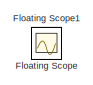
[diagram: root canvas - part 1/2, top left region]
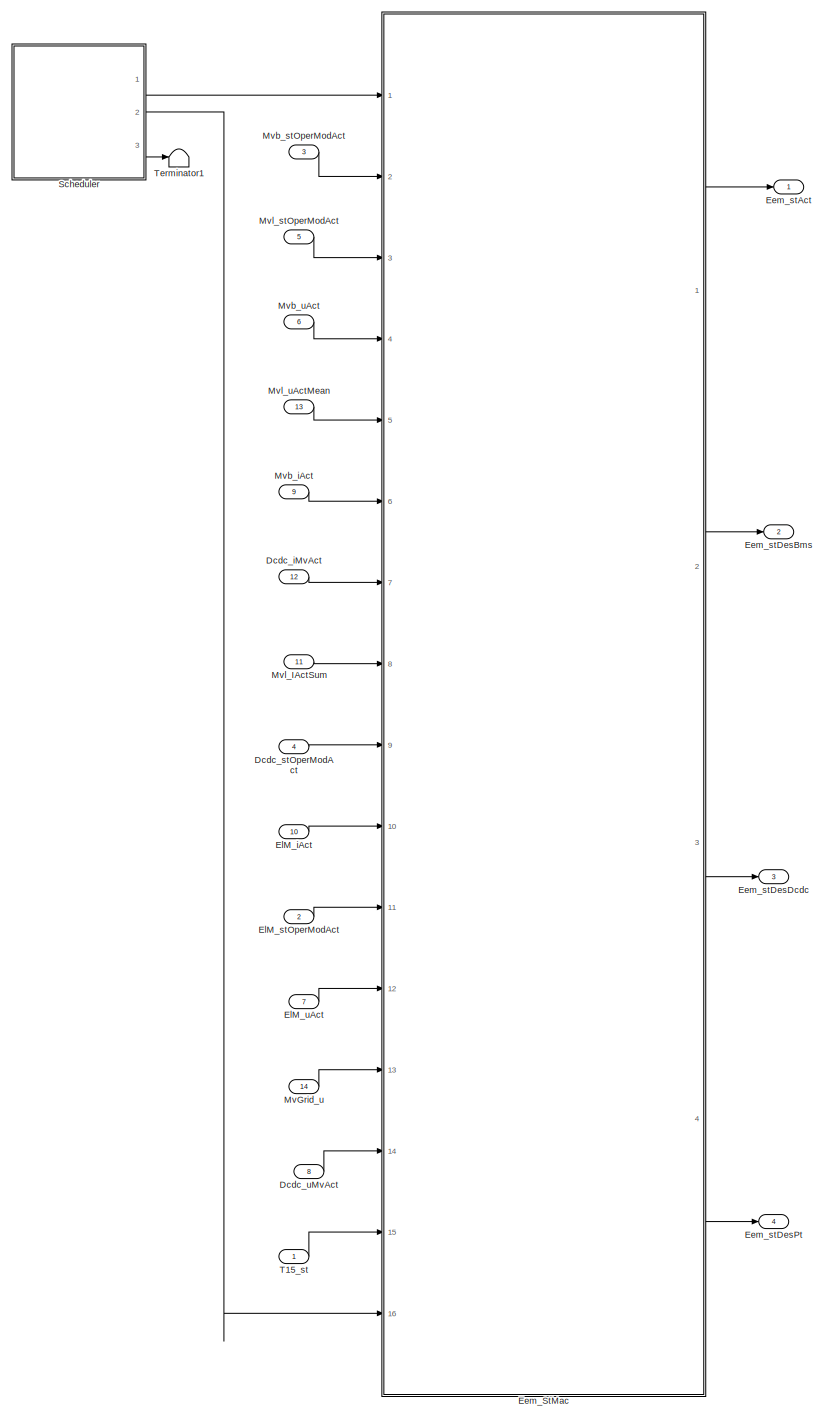
[diagram: root canvas - part 2/2, most of the canvas]
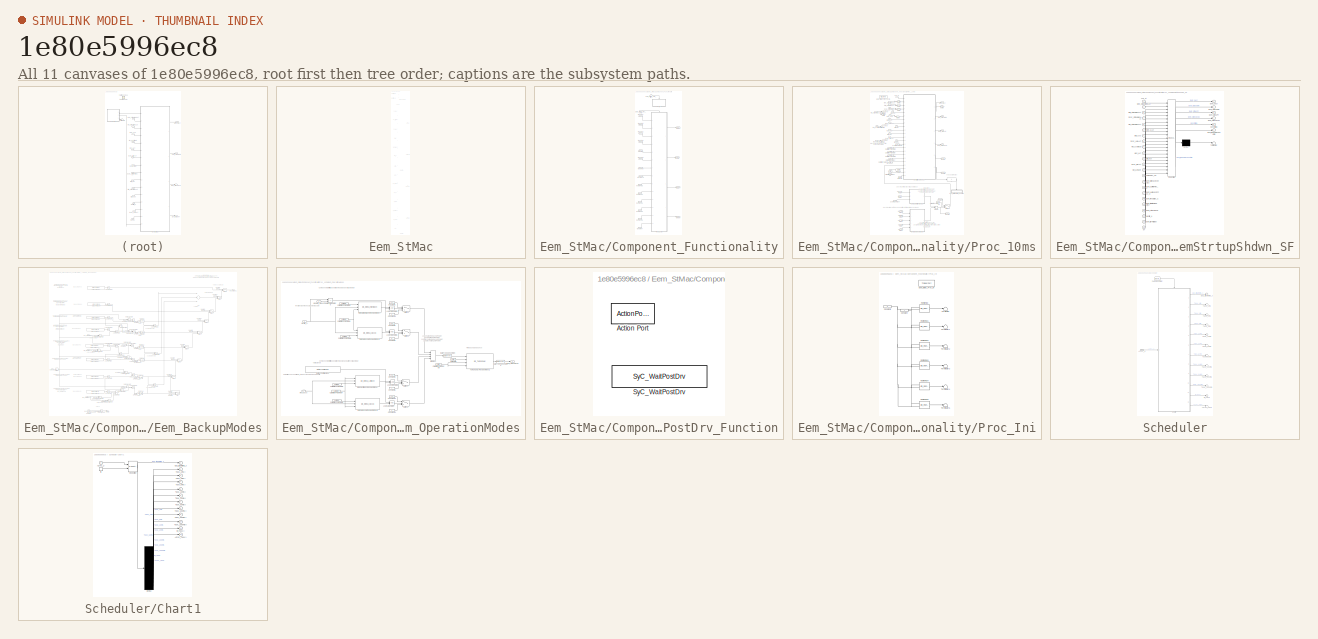
[diagram: thumbnail index - all 11 canvases of the model, root first then tree order]
MODEL slx_1e80e5996ec8
KIND model
CONFIG PreLoadFcn = load('Eem_StMac_Sim_DataSpec.mat')
WORKSPACE source: MAT-file member
WORKSPACE java: class17 (value not decoded)
BLOCK [Inport] Dcdc_iMvAct
  IconDisplay = Port number
  OutDataTypeStr = Curr_A_q0p03125_COMPU_S16
  Port = 12
BLOCK [Inport] Dcdc_stOperModAct
  IconDisplay = Port number
  OutDataTypeStr = OneToOne_U8
  Port = 4
BLOCK [Inport] Dcdc_uMvAct
  IconDisplay = Port number
  OutDataTypeStr = spg_q0p0039_S16
  Port = 8
BLOCK [SubSystem] Eem_StMac
  FunctionWithSeparateData = off
  MaskHideContents = off
  MinAlgLoopOccurrences = off
  Opaque = off
  Ports = [16, 4]
  PropExecContextOutsideSubsystem = off
  RTWSystemCode = Auto
  RequestExecContextInheritance = off
  ShowPortLabels = FromPortBlockName
BLOCK [SubSystem] Eem_StMac/Component_Functionality
  FunctionWithSeparateData = off
  MaskHideContents = off
  MinAlgLoopOccurrences = off
  Opaque = off
  Ports = [2]
  PropExecContextOutsideSubsystem = off
  RTWSystemCode = Auto
  RequestExecContextInheritance = off
BLOCK [Inport] Eem_StMac/Component_Functionality/Eem_StMac_Proc_10ms
  IconDisplay = Port number
BLOCK [Inport] Eem_StMac/Component_Functionality/Eem_StMac_Proc_Ini
  IconDisplay = Port number
  Port = 2
BLOCK [SubSystem] Eem_StMac/Component_Functionality/Proc_10ms
  FunctionWithSeparateData = off
  MaskHideContents = off
  MinAlgLoopOccurrences = off
  Opaque = off
  Ports = [14, 4, 0, 1]
  PropExecContextOutsideSubsystem = off
  RTWSystemCode = Auto
  RequestExecContextInheritance = off
  TreatAsAtomicUnit = on
BLOCK [Reference] Eem_StMac/Component_Functionality/Proc_10ms/CalibrationParameter  REF=Parameter_Lib/CalibrationParameter
  AttributesFormatString = %<ParName>
  ParName = Eem_uDifPtdPrec_C
  ParNameOld = Eem_uDifPtdPrec_C
  ParVal = 5
  ParValDt = spg_q0p0039_S16
  ParValStruct = <1x1 struct>
  Par_MDX = off
  Par_Name = 0
  Ports = [0, 1]
  SourceBlock = Parameter_Lib/CalibrationParameter
  SourceType = Calibration Parameter
  Value = 0
BLOCK [Reference] Eem_StMac/Component_Functionality/Proc_10ms/CalibrationParameter1  REF=Parameter_Lib/CalibrationParameter
  AttributesFormatString = %<ParName>
  ParName = Eem_iMinNcsryCntctr_C
  ParNameOld = Eem_iMinNcsryCntctr_C
  ParVal = 3
  ParValDt = Curr_A_q0p03125_COMPU_S16
  ParValStruct = <1x1 struct>
  Par_MDX = off
  Par_Name = 0
  Ports = [0, 1]
  SourceBlock = Parameter_Lib/CalibrationParameter
  SourceType = Calibration Parameter
  Value = 0
BLOCK [Reference] Eem_StMac/Component_Functionality/Proc_10ms/CalibrationParameter10  REF=Parameter_Lib/CalibrationParameter
  AttributesFormatString = %<ParName>
  ParName = Eem_tiToutStEx_C
  ParNameOld = Eem_tiToutStEx_C
  ParVal = 10
  ParValDt = RBPtCel_ti_0p01_1_U16
  ParValStruct = <1x1 struct>
  Par_MDX = off
  Par_Name = 0
  Ports = [0, 1]
  SourceBlock = Parameter_Lib/CalibrationParameter
  SourceType = Calibration Parameter
  Value = 0
BLOCK [Reference] Eem_StMac/Component_Functionality/Proc_10ms/CalibrationParameter2  REF=Parameter_Lib/CalibrationParameter
  AttributesFormatString = %<ParName>
  ParName = Eem_uMinNcsryPrec_C
  ParNameOld = Eem_uMinNcsryPrec_C
  ParVal = 30
  ParValDt = spg_q0p0039_S16
  ParValStruct = <1x1 struct>
  Par_MDX = off
  Par_Name = 0
  Ports = [0, 1]
  SourceBlock = Parameter_Lib/CalibrationParameter
  SourceType = Calibration Parameter
  Value = 0
BLOCK [Reference] Eem_StMac/Component_Functionality/Proc_10ms/CalibrationParameter3  REF=Parameter_Lib/CalibrationParameter
  AttributesFormatString = %<ParName>
  ParName = Eem_flgTmrDisbl_C
  ParNameOld = Eem_flgTmrDisbl_C
  ParVal = 0
  ParValDt = boolean
  ParValStruct = <1x1 struct>
  Par_MDX = off
  Par_Name = 0
  Ports = [0, 1]
  SourceBlock = Parameter_Lib/CalibrationParameter
  SourceType = Calibration Parameter
  Value = 0
BLOCK [Reference] Eem_StMac/Component_Functionality/Proc_10ms/CalibrationParameter4  REF=Parameter_Lib/CalibrationParameter
  AttributesFormatString = %<ParName>
  ParName = Eem_flgBkupDisbl_C
  ParNameOld = Eem_flgBkupDisbl_C
  ParVal = 0
  ParValDt = boolean
  ParValStruct = <1x1 struct>
  Par_MDX = off
  Par_Name = 0
  Ports = [0, 1]
  SourceBlock = Parameter_Lib/CalibrationParameter
  SourceType = Calibration Parameter
  Value = 0
BLOCK [Reference] Eem_StMac/Component_Functionality/Proc_10ms/CalibrationParameter5  REF=Parameter_Lib/CalibrationParameter
  AttributesFormatString = %<ParName>
  ParName = Eem_tiWaitPwrSplyOff_C
  ParNameOld = Eem_tiWaitPwrSplyOff_C
  ParVal = 2
  ParValDt = RBPtCel_ti_0p01_1_U16
  ParValStruct = <1x1 struct>
  Par_MDX = off
  Par_Name = 0
  Ports = [0, 1]
  SourceBlock = Parameter_Lib/CalibrationParameter
  SourceType = Calibration Parameter
  Value = 0
BLOCK [Constant] Eem_StMac/Component_Functionality/Proc_10ms/Constant1
  OutDataTypeStr = OneToOne_U16
  Value = 0
BLOCK [Inport] Eem_StMac/Component_Functionality/Proc_10ms/Dcdc_iMvAct
  IconDisplay = Port number
  Port = 12
BLOCK [Inport] Eem_StMac/Component_Functionality/Proc_10ms/Dcdc_stOperModAct
  IconDisplay = Port number
  Port = 4
BLOCK [Inport] Eem_StMac/Component_Functionality/Proc_10ms/Dcdc_uMvAct
  IconDisplay = Port number
  Port = 8
BLOCK [Reference] Eem_StMac/Component_Functionality/Proc_10ms/DeltaTime  REF=DeltaTime_Lib/DeltaTime
  Ports = [0, 1]
  SourceBlock = DeltaTime_Lib/DeltaTime
  SourceType = Delta time
  initVal = .01
  outDType = sfix32_S1en6
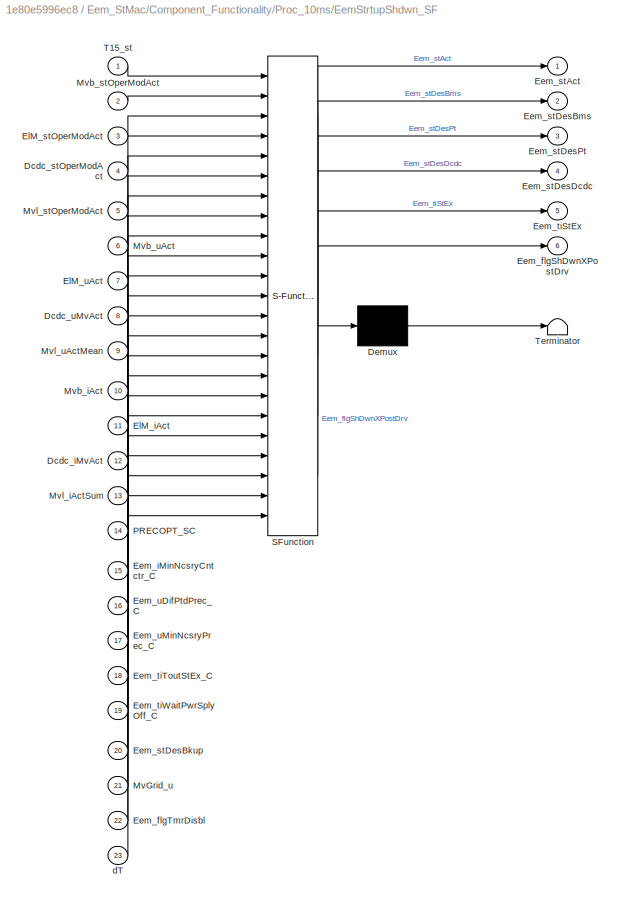
BLOCK [SubSystem] Eem_StMac/Component_Functionality/Proc_10ms/EemStrtupShdwn_SF
  ErrorFcn = Stateflow.Translate.translate
  FunctionWithSeparateData = off
  MaskHideContents = off
  MinAlgLoopOccurrences = on
  Opaque = off
  PermitHierarchicalResolution = ExplicitOnly
  Ports = [23, 6]
  PropExecContextOutsideSubsystem = off
  RTWSystemCode = Auto
  RequestExecContextInheritance = off
  SFBlockType = Chart
  TreatAsAtomicUnit = on
BLOCK [Demux] Eem_StMac/Component_Functionality/Proc_10ms/EemStrtupShdwn_SF/ Demux 
  Outputs = 1
  Ports = [1, 1]
BLOCK [S-Function] Eem_StMac/Component_Functionality/Proc_10ms/EemStrtupShdwn_SF/ SFunction 
  EnableBusSupport = on
  FunctionName = sf_sfun
  PortCounts = [23 7]
  Ports = [23, 7]
  Tag = Stateflow S-Function Eem_StMac_Prj 13
BLOCK [Terminator] Eem_StMac/Component_Functionality/Proc_10ms/EemStrtupShdwn_SF/ Terminator 
BLOCK [Inport] Eem_StMac/Component_Functionality/Proc_10ms/EemStrtupShdwn_SF/Dcdc_iMvAct
  IconDisplay = Port number
  Port = 12
BLOCK [Inport] Eem_StMac/Component_Functionality/Proc_10ms/EemStrtupShdwn_SF/Dcdc_stOperModAct
  IconDisplay = Port number
  Port = 4
BLOCK [Inport] Eem_StMac/Component_Functionality/Proc_10ms/EemStrtupShdwn_SF/Dcdc_uMvAct
  IconDisplay = Port number
  Port = 8
BLOCK [Outport] Eem_StMac/Component_Functionality/Proc_10ms/EemStrtupShdwn_SF/Eem_flgShDwnXPostDrv
  IconDisplay = Port number
  Port = 6
BLOCK [Inport] Eem_StMac/Component_Functionality/Proc_10ms/EemStrtupShdwn_SF/Eem_flgTmrDisbl
  IconDisplay = Port number
  Port = 22
BLOCK [Inport] Eem_StMac/Component_Functionality/Proc_10ms/EemStrtupShdwn_SF/Eem_iMinNcsryCntctr_C
  IconDisplay = Port number
  Port = 15
BLOCK [Outport] Eem_StMac/Component_Functionality/Proc_10ms/EemStrtupShdwn_SF/Eem_stAct
  IconDisplay = Port number
BLOCK [Inport] Eem_StMac/Component_Functionality/Proc_10ms/EemStrtupShdwn_SF/Eem_stDesBkup
  IconDisplay = Port number
  Port = 20
BLOCK [Outport] Eem_StMac/Component_Functionality/Proc_10ms/EemStrtupShdwn_SF/Eem_stDesBms
  IconDisplay = Port number
  Port = 2
BLOCK [Outport] Eem_StMac/Component_Functionality/Proc_10ms/EemStrtupShdwn_SF/Eem_stDesDcdc
  IconDisplay = Port number
  Port = 4
BLOCK [Outport] Eem_StMac/Component_Functionality/Proc_10ms/EemStrtupShdwn_SF/Eem_stDesPt
  IconDisplay = Port number
  Port = 3
BLOCK [Outport] Eem_StMac/Component_Functionality/Proc_10ms/EemStrtupShdwn_SF/Eem_tiStEx
  IconDisplay = Port number
  Port = 5
BLOCK [Inport] Eem_StMac/Component_Functionality/Proc_10ms/EemStrtupShdwn_SF/Eem_tiToutStEx_C
  IconDisplay = Port number
  Port = 18
BLOCK [Inport] Eem_StMac/Component_Functionality/Proc_10ms/EemStrtupShdwn_SF/Eem_tiWaitPwrSplyOff_C
  IconDisplay = Port number
  Port = 19
BLOCK [Inport] Eem_StMac/Component_Functionality/Proc_10ms/EemStrtupShdwn_SF/Eem_uDifPtdPrec_C
  IconDisplay = Port number
  Port = 16
BLOCK [Inport] Eem_StMac/Component_Functionality/Proc_10ms/EemStrtupShdwn_SF/Eem_uMinNcsryPrec_C
  IconDisplay = Port number
  Port = 17
BLOCK [Inport] Eem_StMac/Component_Functionality/Proc_10ms/EemStrtupShdwn_SF/ElM_iAct
  IconDisplay = Port number
  Port = 11
BLOCK [Inport] Eem_StMac/Component_Functionality/Proc_10ms/EemStrtupShdwn_SF/ElM_stOperModAct
  IconDisplay = Port number
  Port = 3
BLOCK [Inport] Eem_StMac/Component_Functionality/Proc_10ms/EemStrtupShdwn_SF/ElM_uAct
  IconDisplay = Port number
  Port = 7
BLOCK [Inport] Eem_StMac/Component_Functionality/Proc_10ms/EemStrtupShdwn_SF/MvGrid_u
  IconDisplay = Port number
  Port = 21
BLOCK [Inport] Eem_StMac/Component_Functionality/Proc_10ms/EemStrtupShdwn_SF/Mvb_iAct
  IconDisplay = Port number
  Port = 10
BLOCK [Inport] Eem_StMac/Component_Functionality/Proc_10ms/EemStrtupShdwn_SF/Mvb_stOperModAct
  IconDisplay = Port number
  Port = 2
BLOCK [Inport] Eem_StMac/Component_Functionality/Proc_10ms/EemStrtupShdwn_SF/Mvb_uAct
  IconDisplay = Port number
  Port = 6
BLOCK [Inport] Eem_StMac/Component_Functionality/Proc_10ms/EemStrtupShdwn_SF/Mvl_iActSum
  IconDisplay = Port number
  Port = 13
BLOCK [Inport] Eem_StMac/Component_Functionality/Proc_10ms/EemStrtupShdwn_SF/Mvl_stOperModAct
  IconDisplay = Port number
  Port = 5
BLOCK [Inport] Eem_StMac/Component_Functionality/Proc_10ms/EemStrtupShdwn_SF/Mvl_uActMean
  IconDisplay = Port number
  Port = 9
BLOCK [Inport] Eem_StMac/Component_Functionality/Proc_10ms/EemStrtupShdwn_SF/PRECOPT_SC
  IconDisplay = Port number
  Port = 14
BLOCK [Inport] Eem_StMac/Component_Functionality/Proc_10ms/EemStrtupShdwn_SF/T15_st
  IconDisplay = Port number
BLOCK [Inport] Eem_StMac/Component_Functionality/Proc_10ms/EemStrtupShdwn_SF/dT
  IconDisplay = Port number
  Port = 23
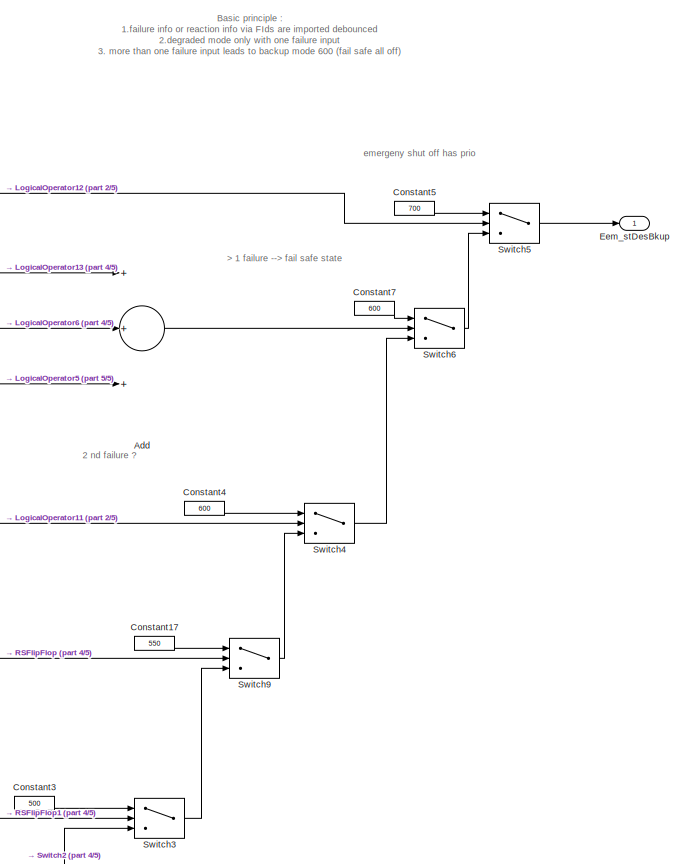
[diagram: Eem_StMac/Component_Functionality/Proc_10ms/Eem_BackupModes - part 1/5, top right region]
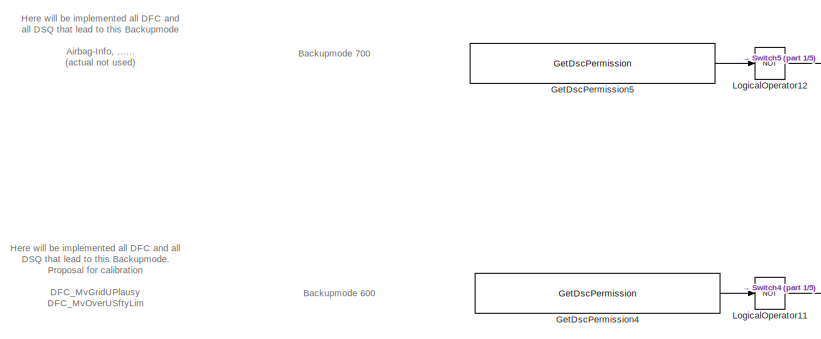
[diagram: Eem_StMac/Component_Functionality/Proc_10ms/Eem_BackupModes - part 2/5, top left region]
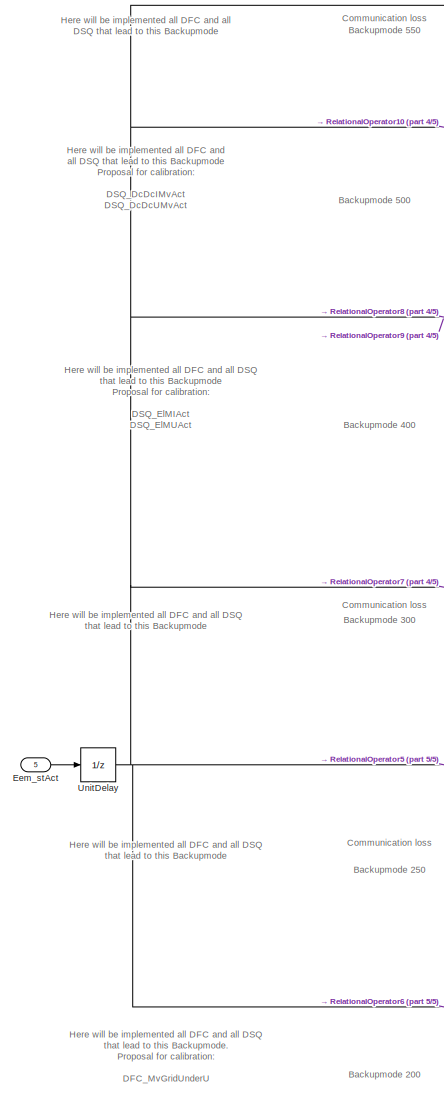
[diagram: Eem_StMac/Component_Functionality/Proc_10ms/Eem_BackupModes - part 3/5, middle left region]
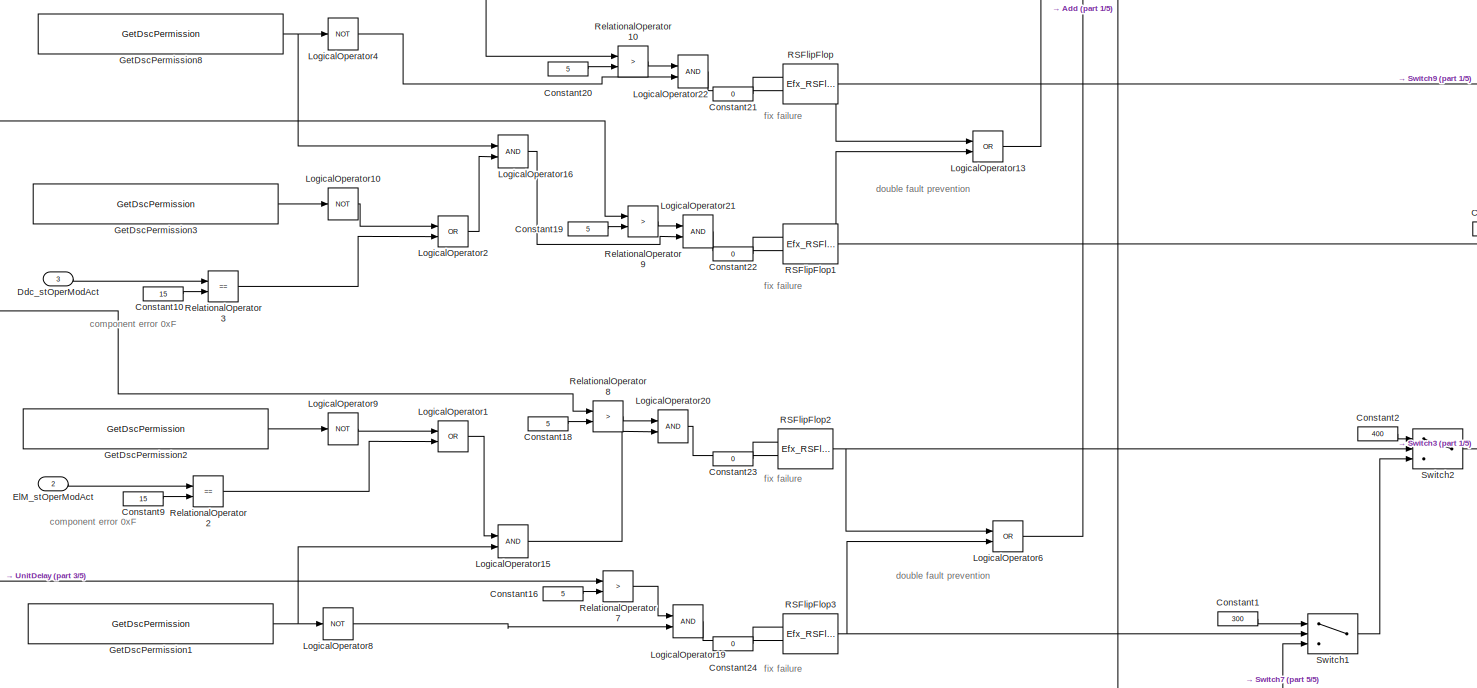
[diagram: Eem_StMac/Component_Functionality/Proc_10ms/Eem_BackupModes - part 4/5, central region]
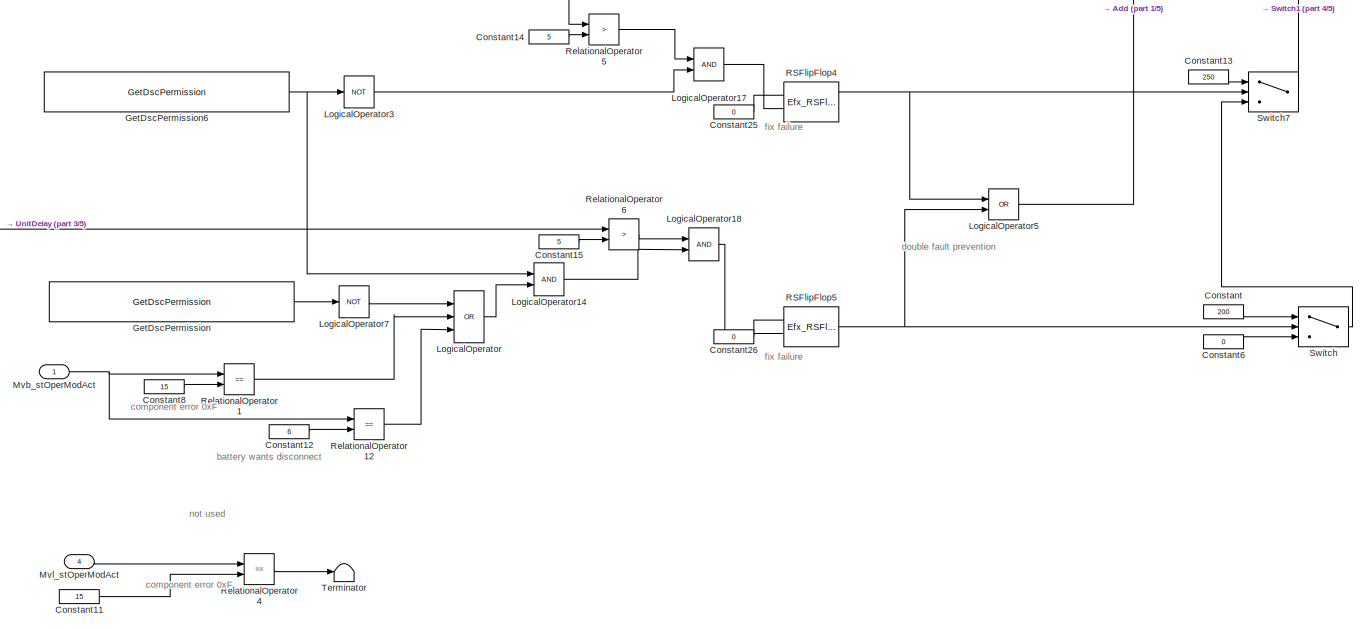
[diagram: Eem_StMac/Component_Functionality/Proc_10ms/Eem_BackupModes - part 5/5, bottom center region]
BLOCK [SubSystem] Eem_StMac/Component_Functionality/Proc_10ms/Eem_BackupModes
  FunctionWithSeparateData = off
  MaskHideContents = off
  MinAlgLoopOccurrences = off
  Opaque = off
  Ports = [5, 1]
  PropExecContextOutsideSubsystem = off
  RTWSystemCode = Auto
  RequestExecContextInheritance = off
BLOCK [Sum] Eem_StMac/Component_Functionality/Proc_10ms/Eem_BackupModes/Add
  InputSameDT = off
  Inputs = +++
  OutDataTypeStr = Inherit: Inherit via internal rule
  Ports = [3, 1]
  RndMeth = Simplest
BLOCK [Constant] Eem_StMac/Component_Functionality/Proc_10ms/Eem_BackupModes/Constant
  OutDataTypeStr = OneToOne_U16
  Value = 200
BLOCK [Constant] Eem_StMac/Component_Functionality/Proc_10ms/Eem_BackupModes/Constant1
  OutDataTypeStr = OneToOne_U16
  Value = 300
BLOCK [Constant] Eem_StMac/Component_Functionality/Proc_10ms/Eem_BackupModes/Constant10
  OutDataTypeStr = uint8
  Value = 15
BLOCK [Constant] Eem_StMac/Component_Functionality/Proc_10ms/Eem_BackupModes/Constant11
  OutDataTypeStr = uint8
  Value = 15
BLOCK [Constant] Eem_StMac/Component_Functionality/Proc_10ms/Eem_BackupModes/Constant12
  OutDataTypeStr = uint8
  Value = 6
BLOCK [Constant] Eem_StMac/Component_Functionality/Proc_10ms/Eem_BackupModes/Constant13
  OutDataTypeStr = OneToOne_U16
  Value = 250
BLOCK [Constant] Eem_StMac/Component_Functionality/Proc_10ms/Eem_BackupModes/Constant14
  OutDataTypeStr = uint8
  Value = 5
BLOCK [Constant] Eem_StMac/Component_Functionality/Proc_10ms/Eem_BackupModes/Constant15
  OutDataTypeStr = uint8
  Value = 5
BLOCK [Constant] Eem_StMac/Component_Functionality/Proc_10ms/Eem_BackupModes/Constant16
  OutDataTypeStr = uint8
  Value = 5
BLOCK [Constant] Eem_StMac/Component_Functionality/Proc_10ms/Eem_BackupModes/Constant17
  OutDataTypeStr = OneToOne_U16
  Value = 550
BLOCK [Constant] Eem_StMac/Component_Functionality/Proc_10ms/Eem_BackupModes/Constant18
  OutDataTypeStr = uint8
  Value = 5
BLOCK [Constant] Eem_StMac/Component_Functionality/Proc_10ms/Eem_BackupModes/Constant19
  OutDataTypeStr = uint8
  Value = 5
BLOCK [Constant] Eem_StMac/Component_Functionality/Proc_10ms/Eem_BackupModes/Constant2
  OutDataTypeStr = OneToOne_U16
  Value = 400
BLOCK [Constant] Eem_StMac/Component_Functionality/Proc_10ms/Eem_BackupModes/Constant20
  OutDataTypeStr = uint8
  Value = 5
BLOCK [Constant] Eem_StMac/Component_Functionality/Proc_10ms/Eem_BackupModes/Constant21
  OutDataTypeStr = boolean
  Value = 0
BLOCK [Constant] Eem_StMac/Component_Functionality/Proc_10ms/Eem_BackupModes/Constant22
  OutDataTypeStr = boolean
  Value = 0
BLOCK [Constant] Eem_StMac/Component_Functionality/Proc_10ms/Eem_BackupModes/Constant23
  OutDataTypeStr = boolean
  Value = 0
BLOCK [Constant] Eem_StMac/Component_Functionality/Proc_10ms/Eem_BackupModes/Constant24
  OutDataTypeStr = boolean
  Value = 0
BLOCK [Constant] Eem_StMac/Component_Functionality/Proc_10ms/Eem_BackupModes/Constant25
  OutDataTypeStr = boolean
  Value = 0
BLOCK [Constant] Eem_StMac/Component_Functionality/Proc_10ms/Eem_BackupModes/Constant26
  OutDataTypeStr = boolean
  Value = 0
BLOCK [Constant] Eem_StMac/Component_Functionality/Proc_10ms/Eem_BackupModes/Constant3
  OutDataTypeStr = OneToOne_U16
  Value = 500
BLOCK [Constant] Eem_StMac/Component_Functionality/Proc_10ms/Eem_BackupModes/Constant4
  OutDataTypeStr = OneToOne_U16
  Value = 600
BLOCK [Constant] Eem_StMac/Component_Functionality/Proc_10ms/Eem_BackupModes/Constant5
  OutDataTypeStr = OneToOne_U16
  Value = 700
BLOCK [Constant] Eem_StMac/Component_Functionality/Proc_10ms/Eem_BackupModes/Constant6
  OutDataTypeStr = OneToOne_U16
  Value = 0
BLOCK [Constant] Eem_StMac/Component_Functionality/Proc_10ms/Eem_BackupModes/Constant7
  OutDataTypeStr = OneToOne_U16
  Value = 600
BLOCK [Constant] Eem_StMac/Component_Functionality/Proc_10ms/Eem_BackupModes/Constant8
  OutDataTypeStr = uint8
  Value = 15
BLOCK [Constant] Eem_StMac/Component_Functionality/Proc_10ms/Eem_BackupModes/Constant9
  OutDataTypeStr = uint8
  Value = 15
BLOCK [Inport] Eem_StMac/Component_Functionality/Proc_10ms/Eem_BackupModes/Ddc_stOperModAct
  IconDisplay = Port number
  Port = 3
BLOCK [Inport] Eem_StMac/Component_Functionality/Proc_10ms/Eem_BackupModes/Eem_stAct
  IconDisplay = Port number
  Port = 5
BLOCK [Outport] Eem_StMac/Component_Functionality/Proc_10ms/Eem_BackupModes/Eem_stDesBkup
  IconDisplay = Port number
BLOCK [Inport] Eem_StMac/Component_Functionality/Proc_10ms/Eem_BackupModes/ElM_stOperModAct
  IconDisplay = Port number
  Port = 2
BLOCK [Reference] Eem_StMac/Component_Functionality/Proc_10ms/Eem_BackupModes/GetDscPermission  REF=DSM_Library/GetDscPermission
  ParFID = FId_MvGridBattDiscnct
  ParSimMode = off
  ParSimResult = True
  Par_SimMode = Simple Simulation
  Par_SimRes = TRUE
  Par_SimResult = 1
  Ports = [0, 1]
  SourceBlock = DSM_Library/GetDscPermission
  SourceType = DSM_GetDscPermission
BLOCK [Reference] Eem_StMac/Component_Functionality/Proc_10ms/Eem_BackupModes/GetDscPermission1  REF=DSM_Library/GetDscPermission
  ParFID = FId_MvGridBRMChrgRed
  ParSimMode = off
  ParSimResult = True
  Par_SimMode = Simple Simulation
  Par_SimRes = TRUE
  Par_SimResult = 1
  Ports = [0, 1]
  SourceBlock = DSM_Library/GetDscPermission
  SourceType = DSM_GetDscPermission
BLOCK [Reference] Eem_StMac/Component_Functionality/Proc_10ms/Eem_BackupModes/GetDscPermission2  REF=DSM_Library/GetDscPermission
  ParFID = FId_MvGridBRMOff
  ParSimMode = off
  ParSimResult = True
  Par_SimMode = Simple Simulation
  Par_SimRes = TRUE
  Par_SimResult = 1
  Ports = [0, 1]
  SourceBlock = DSM_Library/GetDscPermission
  SourceType = DSM_GetDscPermission
BLOCK [Reference] Eem_StMac/Component_Functionality/Proc_10ms/Eem_BackupModes/GetDscPermission3  REF=DSM_Library/GetDscPermission
  ParFID = FId_MvGridDcdcOff
  ParSimMode = off
  ParSimResult = True
  Par_SimMode = Simple Simulation
  Par_SimRes = TRUE
  Par_SimResult = 1
  Ports = [0, 1]
  SourceBlock = DSM_Library/GetDscPermission
  SourceType = DSM_GetDscPermission
BLOCK [Reference] Eem_StMac/Component_Functionality/Proc_10ms/Eem_BackupModes/GetDscPermission4  REF=DSM_Library/GetDscPermission
  ParFID = FId_MvGridBRMBattDcdcOff
  ParSimMode = off
  ParSimResult = True
  Par_SimMode = Simple Simulation
  Par_SimRes = TRUE
  Par_SimResult = 1
  Ports = [0, 1]
  SourceBlock = DSM_Library/GetDscPermission
  SourceType = DSM_GetDscPermission
BLOCK [Reference] Eem_StMac/Component_Functionality/Proc_10ms/Eem_BackupModes/GetDscPermission5  REF=DSM_Library/GetDscPermission
  ParFID = FId_MvGridEmgyOff
  ParSimMode = off
  ParSimResult = True
  Par_SimMode = Simple Simulation
  Par_SimRes = TRUE
  Par_SimResult = 1
  Ports = [0, 1]
  SourceBlock = DSM_Library/GetDscPermission
  SourceType = DSM_GetDscPermission
BLOCK [Reference] Eem_StMac/Component_Functionality/Proc_10ms/Eem_BackupModes/GetDscPermission6  REF=DSM_Library/GetDscPermission
  ParFID = FId_MvGridBattDiscnctComIntrpt
  ParSimMode = off
  ParSimResult = True
  Par_SimMode = Simple Simulation
  Par_SimRes = TRUE
  Par_SimResult = 1
  Ports = [0, 1]
  SourceBlock = DSM_Library/GetDscPermission
  SourceType = DSM_GetDscPermission
BLOCK [Reference] Eem_StMac/Component_Functionality/Proc_10ms/Eem_BackupModes/GetDscPermission8  REF=DSM_Library/GetDscPermission
  ParFID = FId_MvGridDcdcOffComIntrpt
  ParSimMode = off
  ParSimResult = True
  Par_SimMode = Simple Simulation
  Par_SimRes = TRUE
  Par_SimResult = 1
  Ports = [0, 1]
  SourceBlock = DSM_Library/GetDscPermission
  SourceType = DSM_GetDscPermission
BLOCK [Logic] Eem_StMac/Component_Functionality/Proc_10ms/Eem_BackupModes/LogicalOperator
  AllPortsSameDT = off
  Inputs = 3
  Operator = OR
  OutDataTypeStr = boolean
  Ports = [3, 1]
BLOCK [Logic] Eem_StMac/Component_Functionality/Proc_10ms/Eem_BackupModes/LogicalOperator1
  AllPortsSameDT = off
  Operator = OR
  OutDataTypeStr = boolean
  Ports = [2, 1]
BLOCK [Logic] Eem_StMac/Component_Functionality/Proc_10ms/Eem_BackupModes/LogicalOperator10
  AllPortsSameDT = off
  Operator = NOT
  OutDataTypeStr = boolean
  Ports = [1, 1]
BLOCK [Logic] Eem_StMac/Component_Functionality/Proc_10ms/Eem_BackupModes/LogicalOperator11
  AllPortsSameDT = off
  Operator = NOT
  OutDataTypeStr = boolean
  Ports = [1, 1]
BLOCK [Logic] Eem_StMac/Component_Functionality/Proc_10ms/Eem_BackupModes/LogicalOperator12
  AllPortsSameDT = off
  Operator = NOT
  OutDataTypeStr = boolean
  Ports = [1, 1]
BLOCK [Logic] Eem_StMac/Component_Functionality/Proc_10ms/Eem_BackupModes/LogicalOperator13
  AllPortsSameDT = off
  Operator = OR
  OutDataTypeStr = boolean
  Ports = [2, 1]
BLOCK [Logic] Eem_StMac/Component_Functionality/Proc_10ms/Eem_BackupModes/LogicalOperator14
  AllPortsSameDT = off
  OutDataTypeStr = boolean
  Ports = [2, 1]
BLOCK [Logic] Eem_StMac/Component_Functionality/Proc_10ms/Eem_BackupModes/LogicalOperator15
  AllPortsSameDT = off
  OutDataTypeStr = boolean
  Ports = [2, 1]
BLOCK [Logic] Eem_StMac/Component_Functionality/Proc_10ms/Eem_BackupModes/LogicalOperator16
  AllPortsSameDT = off
  OutDataTypeStr = boolean
  Ports = [2, 1]
BLOCK [Logic] Eem_StMac/Component_Functionality/Proc_10ms/Eem_BackupModes/LogicalOperator17
  AllPortsSameDT = off
  OutDataTypeStr = boolean
  Ports = [2, 1]
BLOCK [Logic] Eem_StMac/Component_Functionality/Proc_10ms/Eem_BackupModes/LogicalOperator18
  AllPortsSameDT = off
  OutDataTypeStr = boolean
  Ports = [2, 1]
BLOCK [Logic] Eem_StMac/Component_Functionality/Proc_10ms/Eem_BackupModes/LogicalOperator19
  AllPortsSameDT = off
  OutDataTypeStr = boolean
  Ports = [2, 1]
BLOCK [Logic] Eem_StMac/Component_Functionality/Proc_10ms/Eem_BackupModes/LogicalOperator2
  AllPortsSameDT = off
  Operator = OR
  OutDataTypeStr = boolean
  Ports = [2, 1]
BLOCK [Logic] Eem_StMac/Component_Functionality/Proc_10ms/Eem_BackupModes/LogicalOperator20
  AllPortsSameDT = off
  OutDataTypeStr = boolean
  Ports = [2, 1]
BLOCK [Logic] Eem_StMac/Component_Functionality/Proc_10ms/Eem_BackupModes/LogicalOperator21
  AllPortsSameDT = off
  OutDataTypeStr = boolean
  Ports = [2, 1]
BLOCK [Logic] Eem_StMac/Component_Functionality/Proc_10ms/Eem_BackupModes/LogicalOperator22
  AllPortsSameDT = off
  OutDataTypeStr = boolean
  Ports = [2, 1]
BLOCK [Logic] Eem_StMac/Component_Functionality/Proc_10ms/Eem_BackupModes/LogicalOperator3
  AllPortsSameDT = off
  Operator = NOT
  OutDataTypeStr = boolean
  Ports = [1, 1]
BLOCK [Logic] Eem_StMac/Component_Functionality/Proc_10ms/Eem_BackupModes/LogicalOperator4
  AllPortsSameDT = off
  Operator = NOT
  OutDataTypeStr = boolean
  Ports = [1, 1]
BLOCK [Logic] Eem_StMac/Component_Functionality/Proc_10ms/Eem_BackupModes/LogicalOperator5
  AllPortsSameDT = off
  Operator = OR
  OutDataTypeStr = boolean
  Ports = [2, 1]
BLOCK [Logic] Eem_StMac/Component_Functionality/Proc_10ms/Eem_BackupModes/LogicalOperator6
  AllPortsSameDT = off
  Operator = OR
  OutDataTypeStr = boolean
  Ports = [2, 1]
BLOCK [Logic] Eem_StMac/Component_Functionality/Proc_10ms/Eem_BackupModes/LogicalOperator7
  AllPortsSameDT = off
  Operator = NOT
  OutDataTypeStr = boolean
  Ports = [1, 1]
BLOCK [Logic] Eem_StMac/Component_Functionality/Proc_10ms/Eem_BackupModes/LogicalOperator8
  AllPortsSameDT = off
  Operator = NOT
  OutDataTypeStr = boolean
  Ports = [1, 1]
BLOCK [Logic] Eem_StMac/Component_Functionality/Proc_10ms/Eem_BackupModes/LogicalOperator9
  AllPortsSameDT = off
  Operator = NOT
  OutDataTypeStr = boolean
  Ports = [1, 1]
BLOCK [Inport] Eem_StMac/Component_Functionality/Proc_10ms/Eem_BackupModes/Mvb_stOperModAct
  IconDisplay = Port number
BLOCK [Inport] Eem_StMac/Component_Functionality/Proc_10ms/Eem_BackupModes/Mvl_stOperModAct
  IconDisplay = Port number
  Port = 4
BLOCK [Reference] Eem_StMac/Component_Functionality/Proc_10ms/Eem_BackupModes/RSFlipFlop  REF=Efx_Library/Efx_RSFlipFlop
  AttributesFormatString = %<Par_State>
  Par_StateOld = Eem_RSFlipFlop550
  Par_state = Eem_RSFlipFlop550
  Ports = [2, 1]
  SourceBlock = Efx_Library/Efx_RSFlipFlop
  SourceType = RSFlipFlop
BLOCK [Reference] Eem_StMac/Component_Functionality/Proc_10ms/Eem_BackupModes/RSFlipFlop1  REF=Efx_Library/Efx_RSFlipFlop
  AttributesFormatString = %<Par_State>
  Par_StateOld = Eem_RSFlipFlop500
  Par_state = Eem_RSFlipFlop500
  Ports = [2, 1]
  SourceBlock = Efx_Library/Efx_RSFlipFlop
  SourceType = RSFlipFlop
BLOCK [Reference] Eem_StMac/Component_Functionality/Proc_10ms/Eem_BackupModes/RSFlipFlop2  REF=Efx_Library/Efx_RSFlipFlop
  AttributesFormatString = %<Par_State>
  Par_StateOld = Eem_RSFlipFlop400
  Par_state = Eem_RSFlipFlop400
  Ports = [2, 1]
  SourceBlock = Efx_Library/Efx_RSFlipFlop
  SourceType = RSFlipFlop
BLOCK [Reference] Eem_StMac/Component_Functionality/Proc_10ms/Eem_BackupModes/RSFlipFlop3  REF=Efx_Library/Efx_RSFlipFlop
  AttributesFormatString = %<Par_State>
  Par_StateOld = Eem_RSFlipFlop300
  Par_state = Eem_RSFlipFlop300
  Ports = [2, 1]
  SourceBlock = Efx_Library/Efx_RSFlipFlop
  SourceType = RSFlipFlop
BLOCK [Reference] Eem_StMac/Component_Functionality/Proc_10ms/Eem_BackupModes/RSFlipFlop4  REF=Efx_Library/Efx_RSFlipFlop
  AttributesFormatString = %<Par_State>
  Par_StateOld = Eem_RSFlipFlop250
  Par_state = Eem_RSFlipFlop250
  Ports = [2, 1]
  SourceBlock = Efx_Library/Efx_RSFlipFlop
  SourceType = RSFlipFlop
BLOCK [Reference] Eem_StMac/Component_Functionality/Proc_10ms/Eem_BackupModes/RSFlipFlop5  REF=Efx_Library/Efx_RSFlipFlop
  AttributesFormatString = %<Par_State>
  Par_StateOld = Eem_RSFlipFlop200
  Par_state = Eem_RSFlipFlop200
  Ports = [2, 1]
  SourceBlock = Efx_Library/Efx_RSFlipFlop
  SourceType = RSFlipFlop
BLOCK [RelationalOperator] Eem_StMac/Component_Functionality/Proc_10ms/Eem_BackupModes/RelationalOperator1
  InputSameDT = off
  Operator = ==
  OutDataTypeStr = boolean
  Ports = [2, 1]
BLOCK [RelationalOperator] Eem_StMac/Component_Functionality/Proc_10ms/Eem_BackupModes/RelationalOperator10
  InputSameDT = off
  Operator = >
  OutDataTypeStr = boolean
  Ports = [2, 1]
BLOCK [RelationalOperator] Eem_StMac/Component_Functionality/Proc_10ms/Eem_BackupModes/RelationalOperator12
  InputSameDT = off
  Operator = ==
  OutDataTypeStr = boolean
  Ports = [2, 1]
BLOCK [RelationalOperator] Eem_StMac/Component_Functionality/Proc_10ms/Eem_BackupModes/RelationalOperator2
  InputSameDT = off
  Operator = ==
  OutDataTypeStr = boolean
  Ports = [2, 1]
BLOCK [RelationalOperator] Eem_StMac/Component_Functionality/Proc_10ms/Eem_BackupModes/RelationalOperator3
  InputSameDT = off
  Operator = ==
  OutDataTypeStr = boolean
  Ports = [2, 1]
BLOCK [RelationalOperator] Eem_StMac/Component_Functionality/Proc_10ms/Eem_BackupModes/RelationalOperator4
  InputSameDT = off
  Operator = ==
  OutDataTypeStr = boolean
  Ports = [2, 1]
BLOCK [RelationalOperator] Eem_StMac/Component_Functionality/Proc_10ms/Eem_BackupModes/RelationalOperator5
  InputSameDT = off
  Operator = >
  OutDataTypeStr = boolean
  Ports = [2, 1]
BLOCK [RelationalOperator] Eem_StMac/Component_Functionality/Proc_10ms/Eem_BackupModes/RelationalOperator6
  InputSameDT = off
  Operator = >
  OutDataTypeStr = boolean
  Ports = [2, 1]
BLOCK [RelationalOperator] Eem_StMac/Component_Functionality/Proc_10ms/Eem_BackupModes/RelationalOperator7
  InputSameDT = off
  Operator = >
  OutDataTypeStr = boolean
  Ports = [2, 1]
BLOCK [RelationalOperator] Eem_StMac/Component_Functionality/Proc_10ms/Eem_BackupModes/RelationalOperator8
  InputSameDT = off
  Operator = >
  OutDataTypeStr = boolean
  Ports = [2, 1]
BLOCK [RelationalOperator] Eem_StMac/Component_Functionality/Proc_10ms/Eem_BackupModes/RelationalOperator9
  InputSameDT = off
  Operator = >
  OutDataTypeStr = boolean
  Ports = [2, 1]
BLOCK [Switch] Eem_StMac/Component_Functionality/Proc_10ms/Eem_BackupModes/Switch
  AttributesFormatString = %<Criteria>\nThreshold:%<Threshold>
  Criteria = u2 ~= 0
  InputSameDT = off
  RndMeth = Simplest
BLOCK [Switch] Eem_StMac/Component_Functionality/Proc_10ms/Eem_BackupModes/Switch1
  AttributesFormatString = %<Criteria>\nThreshold:%<Threshold>
  Criteria = u2 ~= 0
  InputSameDT = off
  RndMeth = Simplest
BLOCK [Switch] Eem_StMac/Component_Functionality/Proc_10ms/Eem_BackupModes/Switch2
  AttributesFormatString = %<Criteria>\nThreshold:%<Threshold>
  Criteria = u2 ~= 0
  InputSameDT = off
  RndMeth = Simplest
BLOCK [Switch] Eem_StMac/Component_Functionality/Proc_10ms/Eem_BackupModes/Switch3
  AttributesFormatString = %<Criteria>\nThreshold:%<Threshold>
  Criteria = u2 ~= 0
  InputSameDT = off
  RndMeth = Simplest
BLOCK [Switch] Eem_StMac/Component_Functionality/Proc_10ms/Eem_BackupModes/Switch4
  AttributesFormatString = %<Criteria>\nThreshold:%<Threshold>
  Criteria = u2 ~= 0
  InputSameDT = off
  RndMeth = Simplest
BLOCK [Switch] Eem_StMac/Component_Functionality/Proc_10ms/Eem_BackupModes/Switch5
  AttributesFormatString = %<Criteria>\nThreshold:%<Threshold>
  Criteria = u2 ~= 0
  InputSameDT = off
  RndMeth = Simplest
BLOCK [Switch] Eem_StMac/Component_Functionality/Proc_10ms/Eem_BackupModes/Switch6
  AttributesFormatString = %<Criteria>\nThreshold:%<Threshold>
  Criteria = u2 > Threshold
  InputSameDT = off
  RndMeth = Simplest
  Threshold = 1
BLOCK [Switch] Eem_StMac/Component_Functionality/Proc_10ms/Eem_BackupModes/Switch7
  AttributesFormatString = %<Criteria>\nThreshold:%<Threshold>
  Criteria = u2 ~= 0
  InputSameDT = off
  RndMeth = Simplest
BLOCK [Switch] Eem_StMac/Component_Functionality/Proc_10ms/Eem_BackupModes/Switch9
  AttributesFormatString = %<Criteria>\nThreshold:%<Threshold>
  Criteria = u2 ~= 0
  InputSameDT = off
  RndMeth = Simplest
BLOCK [Terminator] Eem_StMac/Component_Functionality/Proc_10ms/Eem_BackupModes/Terminator
BLOCK [UnitDelay] Eem_StMac/Component_Functionality/Proc_10ms/Eem_BackupModes/UnitDelay
  AttributesFormatString = Init: %<X0>
  InputProcessing = Elements as channels (sample based)
  SampleTime = -1
BLOCK [SubSystem] Eem_StMac/Component_Functionality/Proc_10ms/Eem_OperationModes
  FunctionWithSeparateData = off
  MaskHideContents = off
  MinAlgLoopOccurrences = off
  Opaque = off
  Ports = [3, 1]
  PropExecContextOutsideSubsystem = off
  RTWSystemCode = Auto
  RequestExecContextInheritance = off
BLOCK [Reference] Eem_StMac/Component_Functionality/Proc_10ms/Eem_OperationModes/CalibrationParameter3  REF=Parameter_Lib/CalibrationParameter
  AttributesFormatString = %<ParName>
  ParName = Eem_uLim1MvGrid_C
  ParNameOld = Eem_uLim1MvGrid_C
  ParVal = 52
  ParValDt = spg_q0p0039_S16
  ParValStruct = <1x1 struct>
  Par_MDX = off
  Par_Name = 0
  Ports = [0, 1]
  SourceBlock = Parameter_Lib/CalibrationParameter
  SourceType = Calibration Parameter
  Value = 0
BLOCK [Reference] Eem_StMac/Component_Functionality/Proc_10ms/Eem_OperationModes/CalibrationParameter4  REF=Parameter_Lib/CalibrationParameter
  AttributesFormatString = %<ParName>
  ParName = Eem_uLim2MvGrid_C
  ParNameOld = Eem_uLim2MvGrid_C
  ParVal = 54
  ParValDt = spg_q0p0039_S16
  ParValStruct = <1x1 struct>
  Par_MDX = off
  Par_Name = 0
  Ports = [0, 1]
  SourceBlock = Parameter_Lib/CalibrationParameter
  SourceType = Calibration Parameter
  Value = 0
BLOCK [Reference] Eem_StMac/Component_Functionality/Proc_10ms/Eem_OperationModes/CalibrationParameter5  REF=Parameter_Lib/CalibrationParameter
  AttributesFormatString = %<ParName>
  ParName = Eem_uLim3MvGrid_C
  ParNameOld = Eem_uLim3MvGrid_C
  ParVal = 127
  ParValDt = spg_q0p0039_S16
  ParValStruct = <1x1 struct>
  Par_MDX = off
  Par_Name = 0
  Ports = [0, 1]
  SourceBlock = Parameter_Lib/CalibrationParameter
  SourceType = Calibration Parameter
  Value = 0
BLOCK [Reference] Eem_StMac/Component_Functionality/Proc_10ms/Eem_OperationModes/CalibrationParameter6  REF=Parameter_Lib/CalibrationParameter
  AttributesFormatString = %<ParName>
  ParName = Eem_uLim1Mvb_C
  ParNameOld = Eem_uLim1Mvb_C
  ParVal = 36
  ParValDt = spg_q0p0039_S16
  ParValStruct = <1x1 struct>
  Par_MDX = off
  Par_Name = 0
  Ports = [0, 1]
  SourceBlock = Parameter_Lib/CalibrationParameter
  SourceType = Calibration Parameter
  Value = 0
BLOCK [Reference] Eem_StMac/Component_Functionality/Proc_10ms/Eem_OperationModes/CalibrationParameter7  REF=Parameter_Lib/CalibrationParameter
  AttributesFormatString = %<ParName>
  ParName = Eem_uLim2Mvb_C
  ParNameOld = Eem_uLim2Mvb_C
  ParVal = 30
  ParValDt = spg_q0p0039_S16
  ParValStruct = <1x1 struct>
  Par_MDX = off
  Par_Name = 0
  Ports = [0, 1]
  SourceBlock = Parameter_Lib/CalibrationParameter
  SourceType = Calibration Parameter
  Value = 0
BLOCK [Reference] Eem_StMac/Component_Functionality/Proc_10ms/Eem_OperationModes/CalibrationParameter8  REF=Parameter_Lib/CalibrationParameter
  AttributesFormatString = %<ParName>
  ParName = Eem_uLim3Mvb_C
  ParNameOld = Eem_uLim3Mvb_C
  ParVal = 1
  ParValDt = spg_q0p0039_S16
  ParValStruct = <1x1 struct>
  Par_MDX = off
  Par_Name = 0
  Ports = [0, 1]
  SourceBlock = Parameter_Lib/CalibrationParameter
  SourceType = Calibration Parameter
  Value = 0
BLOCK [Reference] Eem_StMac/Component_Functionality/Proc_10ms/Eem_OperationModes/CalibrationParameter9  REF=Parameter_Lib/CalibrationParameter
  AttributesFormatString = %<ParName>
  ParName = Eem_tiDebTmpRstrcn_C
  ParNameOld = Eem_tiDebTmpRstrcn_C
  ParVal = 10
  ParValDt = RBPtCel_ti_0p01_1_S16
  ParValStruct = <1x1 struct>
  Par_MDX = off
  Par_Name = 0
  Ports = [0, 1]
  SourceBlock = Parameter_Lib/CalibrationParameter
  SourceType = Calibration Parameter
  Value = 0
BLOCK [Constant] Eem_StMac/Component_Functionality/Proc_10ms/Eem_OperationModes/Constant1
  OutDataTypeStr = OneToOne_U16
  Value = 102
BLOCK [Constant] Eem_StMac/Component_Functionality/Proc_10ms/Eem_OperationModes/Constant12
  OutDataTypeStr = OneToOne_U16
  Value = 108
BLOCK [Constant] Eem_StMac/Component_Functionality/Proc_10ms/Eem_OperationModes/Constant13
  OutDataTypeStr = OneToOne_U16
  Value = 0
BLOCK [Constant] Eem_StMac/Component_Functionality/Proc_10ms/Eem_OperationModes/Constant14
  OutDataTypeStr = OneToOne_U16
  Value = 0
BLOCK [Constant] Eem_StMac/Component_Functionality/Proc_10ms/Eem_OperationModes/Constant2
  OutDataTypeStr = OneToOne_U16
  Value = 104
BLOCK [Constant] Eem_StMac/Component_Functionality/Proc_10ms/Eem_OperationModes/Constant3
  OutDataTypeStr = OneToOne_U16
  Value = 106
BLOCK [Constant] Eem_StMac/Component_Functionality/Proc_10ms/Eem_OperationModes/Constant4
  OutDataTypeStr = OneToOne_U16
  Value = 0
BLOCK [Constant] Eem_StMac/Component_Functionality/Proc_10ms/Eem_OperationModes/Constant5
  OutDataTypeStr = OneToOne_U16
  Value = 0
BLOCK [DataTypeConversion] Eem_StMac/Component_Functionality/Proc_10ms/Eem_OperationModes/DataTypeConversion
  RndMeth = Simplest
BLOCK [DataTypeConversion] Eem_StMac/Component_Functionality/Proc_10ms/Eem_OperationModes/DataTypeConversion3
  RndMeth = Simplest
BLOCK [Reference] Eem_StMac/Component_Functionality/Proc_10ms/Eem_OperationModes/DeltaTime  REF=DeltaTime_Lib/DeltaTime
  Ports = [0, 1]
  SourceBlock = DeltaTime_Lib/DeltaTime
  SourceType = Delta time
  initVal = .01
  outDType = sfix32_S1en6
BLOCK [Outport] Eem_StMac/Component_Functionality/Proc_10ms/Eem_OperationModes/Eem_stDesBkup
  IconDisplay = Port number
  OutDataTypeStr = OneToOne_U16
BLOCK [Reference] Eem_StMac/Component_Functionality/Proc_10ms/Eem_OperationModes/GetDscPermission1  REF=DSM_Library/GetDscPermission
  ParFID = FId_StMacDisChrgRed
  ParSimMode = off
  ParSimResult = True
  Par_SimMode = Simple Simulation
  Par_SimRes = TRUE
  Par_SimResult = 1
  Ports = [0, 1]
  SourceBlock = DSM_Library/GetDscPermission
  SourceType = DSM_GetDscPermission
BLOCK [Reference] Eem_StMac/Component_Functionality/Proc_10ms/Eem_OperationModes/IntervalClosed (Fixed-point only)1  REF=Efx_Library/Efx_Interval_Closed
  Ports = [3, 1]
  SourceBlock = Efx_Library/Efx_Interval_Closed
  SourceType = IntervalClosed(Fixed-point only)
BLOCK [Reference] Eem_StMac/Component_Functionality/Proc_10ms/Eem_OperationModes/IntervalClosed (Fixed-point only)3  REF=Efx_Library/Efx_Interval_Closed
  Ports = [3, 1]
  SourceBlock = Efx_Library/Efx_Interval_Closed
  SourceType = IntervalClosed(Fixed-point only)
BLOCK [Reference] Eem_StMac/Component_Functionality/Proc_10ms/Eem_OperationModes/IntervalLeftOpen (Fixed-point only)  REF=Efx_Library/Efx_Interval_LeftOpen
  Ports = [3, 1]
  SourceBlock = Efx_Library/Efx_Interval_LeftOpen
  SourceType = IntervalLeftOpen(Fixed-point only)
BLOCK [Reference] Eem_StMac/Component_Functionality/Proc_10ms/Eem_OperationModes/IntervalRightOpen (Fixed-point only)  REF=Efx_Library/Efx_Interval_RightOpen
  Ports = [3, 1]
  SourceBlock = Efx_Library/Efx_Interval_RightOpen
  SourceType = IntervalRightOpen(Fixed-point only)
BLOCK [Logic] Eem_StMac/Component_Functionality/Proc_10ms/Eem_OperationModes/LogicalOperator1
  AllPortsSameDT = off
  OutDataTypeStr = boolean
  Ports = [2, 1]
BLOCK [Logic] Eem_StMac/Component_Functionality/Proc_10ms/Eem_OperationModes/LogicalOperator2
  AllPortsSameDT = off
  OutDataTypeStr = boolean
  Ports = [2, 1]
BLOCK [Logic] Eem_StMac/Component_Functionality/Proc_10ms/Eem_OperationModes/LogicalOperator3
  AllPortsSameDT = off
  OutDataTypeStr = boolean
  Ports = [2, 1]
BLOCK [Logic] Eem_StMac/Component_Functionality/Proc_10ms/Eem_OperationModes/LogicalOperator4
  AllPortsSameDT = off
  OutDataTypeStr = boolean
  Ports = [2, 1]
BLOCK [Inport] Eem_StMac/Component_Functionality/Proc_10ms/Eem_OperationModes/MVGRID_UINVLD
  IconDisplay = Port number
  Port = 3
BLOCK [MinMax] Eem_StMac/Component_Functionality/Proc_10ms/Eem_OperationModes/MinMax1
  Function = max
  InputSameDT = off
  Inputs = 4
  OutDataTypeStr = OneToOne_U16
  Ports = [4, 1]
  RndMeth = Simplest
BLOCK [Inport] Eem_StMac/Component_Functionality/Proc_10ms/Eem_OperationModes/MvGrid_u
  IconDisplay = Port number
  OutDataTypeStr = spg_q0p0039_S16
  Port = 2
BLOCK [Inport] Eem_StMac/Component_Functionality/Proc_10ms/Eem_OperationModes/Mvb_uAct
  IconDisplay = Port number
BLOCK [RelationalOperator] Eem_StMac/Component_Functionality/Proc_10ms/Eem_OperationModes/RelationalOperator5
  InputSameDT = off
  Operator = ~=
  OutDataTypeStr = boolean
  Ports = [2, 1]
BLOCK [Switch] Eem_StMac/Component_Functionality/Proc_10ms/Eem_OperationModes/Switch1
  AttributesFormatString = %<Criteria>\nThreshold:%<Threshold>
  Criteria = u2 > Threshold
  InputSameDT = off
  RndMeth = Simplest
BLOCK [Switch] Eem_StMac/Component_Functionality/Proc_10ms/Eem_OperationModes/Switch2
  AttributesFormatString = %<Criteria>\nThreshold:%<Threshold>
  Criteria = u2 > Threshold
  InputSameDT = off
  RndMeth = Simplest
BLOCK [Switch] Eem_StMac/Component_Functionality/Proc_10ms/Eem_OperationModes/Switch3
  AttributesFormatString = %<Criteria>\nThreshold:%<Threshold>
  Criteria = u2 > Threshold
  InputSameDT = off
  RndMeth = Simplest
BLOCK [Switch] Eem_StMac/Component_Functionality/Proc_10ms/Eem_OperationModes/Switch4
  AttributesFormatString = %<Criteria>\nThreshold:%<Threshold>
  Criteria = u2 > Threshold
  InputSameDT = off
  RndMeth = Simplest
BLOCK [Reference] Eem_StMac/Component_Functionality/Proc_10ms/Eem_OperationModes/TurnOnDelay (Fixed-point only)1  REF=Efx_Library/Efx_TurnOnDelay
  AttributesFormatString = %<Par_State>
  Par_Deb = on
  Par_Mode = Calculation
  Par_State = Eem_Debounce
  Par_StateOld = Eem_Debounce
  Par_TrnOff = off
  Par_TrnOn = off
  Ports = [4, 1]
  SourceBlock = Efx_Library/Efx_TurnOnDelay
  SourceType = Debounce(Fixed-point only)
BLOCK [TriggerPort] Eem_StMac/Component_Functionality/Proc_10ms/Eem_StMac_Proc_10ms
  AttributesFormatString = Process: %<procName>
  LibraryBlock = ProcessTrigger_Lib/process
  Ports = []
  procName = Eem_StMac_Proc_10ms
BLOCK [Outport] Eem_StMac/Component_Functionality/Proc_10ms/Eem_stAct
  IconDisplay = Port number
  OutDataTypeStr = OneToOne_U16
BLOCK [Outport] Eem_StMac/Component_Functionality/Proc_10ms/Eem_stDesBms
  IconDisplay = Port number
  Port = 2
BLOCK [Outport] Eem_StMac/Component_Functionality/Proc_10ms/Eem_stDesDcdc
  IconDisplay = Port number
  Port = 4
BLOCK [Outport] Eem_StMac/Component_Functionality/Proc_10ms/Eem_stDesPt
  IconDisplay = Port number
  Port = 3
BLOCK [Inport] Eem_StMac/Component_Functionality/Proc_10ms/ElM_iAct
  IconDisplay = Port number
  Port = 11
BLOCK [Inport] Eem_StMac/Component_Functionality/Proc_10ms/ElM_stOperModAct
  IconDisplay = Port number
  Port = 3
BLOCK [Inport] Eem_StMac/Component_Functionality/Proc_10ms/ElM_uAct
  IconDisplay = Port number
  Port = 7
BLOCK [From] Eem_StMac/Component_Functionality/Proc_10ms/From
  AttributesFormatString = %<GotoTag>
  GotoTag = Mvl_stOperModAct
BLOCK [From] Eem_StMac/Component_Functionality/Proc_10ms/From1
  AttributesFormatString = %<GotoTag>
  GotoTag = Mvb_uAct
BLOCK [From] Eem_StMac/Component_Functionality/Proc_10ms/From2
  AttributesFormatString = %<GotoTag>
  GotoTag = Eem_stAct
BLOCK [From] Eem_StMac/Component_Functionality/Proc_10ms/From4
  AttributesFormatString = %<GotoTag>
  GotoTag = MvGrid_u
BLOCK [From] Eem_StMac/Component_Functionality/Proc_10ms/From5
  AttributesFormatString = %<GotoTag>
  GotoTag = Dcdc_stOperModAct
BLOCK [From] Eem_StMac/Component_Functionality/Proc_10ms/From6
  AttributesFormatString = %<GotoTag>
  GotoTag = ElM_stOperModAct
BLOCK [From] Eem_StMac/Component_Functionality/Proc_10ms/From7
  AttributesFormatString = %<GotoTag>
  GotoTag = Mvb_stOperModAct
BLOCK [Goto] Eem_StMac/Component_Functionality/Proc_10ms/Goto
  AttributesFormatString = %<GotoTag>
  GotoTag = Mvl_stOperModAct
BLOCK [Goto] Eem_StMac/Component_Functionality/Proc_10ms/Goto1
  AttributesFormatString = %<GotoTag>
  GotoTag = Mvb_stOperModAct
  IconDisplay = Signal name
BLOCK [Goto] Eem_StMac/Component_Functionality/Proc_10ms/Goto2
  AttributesFormatString = %<GotoTag>
  GotoTag = MvGrid_u
BLOCK [Goto] Eem_StMac/Component_Functionality/Proc_10ms/Goto3
  AttributesFormatString = %<GotoTag>
  GotoTag = ElM_stOperModAct
BLOCK [Goto] Eem_StMac/Component_Functionality/Proc_10ms/Goto4
  AttributesFormatString = %<GotoTag>
  GotoTag = Dcdc_stOperModAct
BLOCK [Goto] Eem_StMac/Component_Functionality/Proc_10ms/Goto5
  AttributesFormatString = %<GotoTag>
  GotoTag = Mvb_uAct
BLOCK [Goto] Eem_StMac/Component_Functionality/Proc_10ms/Goto6
  AttributesFormatString = %<GotoTag>
  GotoTag = Eem_stAct
BLOCK [Ground] Eem_StMac/Component_Functionality/Proc_10ms/Ground
BLOCK [Ground] Eem_StMac/Component_Functionality/Proc_10ms/Ground1
BLOCK [Ground] Eem_StMac/Component_Functionality/Proc_10ms/Ground2
BLOCK [If] Eem_StMac/Component_Functionality/Proc_10ms/If
  IfExpression = u1 ~= 0
  Ports = [1, 1]
  ShowElse = off
BLOCK [MinMax] Eem_StMac/Component_Functionality/Proc_10ms/MinMax
  Function = max
  InputSameDT = off
  Inputs = 2
  OutDataTypeStr = OneToOne_U16
  Ports = [2, 1]
  RndMeth = Simplest
BLOCK [Inport] Eem_StMac/Component_Functionality/Proc_10ms/MvGrid_u
  IconDisplay = Port number
  OutDataTypeStr = spg_q0p0039_S16
  Port = 14
BLOCK [Inport] Eem_StMac/Component_Functionality/Proc_10ms/Mvb_iAct
  IconDisplay = Port number
  Port = 10
BLOCK [Inport] Eem_StMac/Component_Functionality/Proc_10ms/Mvb_stOperModAct
  IconDisplay = Port number
  Port = 2
BLOCK [Inport] Eem_StMac/Component_Functionality/Proc_10ms/Mvb_uAct
  IconDisplay = Port number
  Port = 6
BLOCK [Inport] Eem_StMac/Component_Functionality/Proc_10ms/Mvl_iActSum
  IconDisplay = Port number
  Port = 13
BLOCK [Inport] Eem_StMac/Component_Functionality/Proc_10ms/Mvl_stOperModAct
  IconDisplay = Port number
  Port = 5
BLOCK [Inport] Eem_StMac/Component_Functionality/Proc_10ms/Mvl_uActMean
  IconDisplay = Port number
  Port = 9
BLOCK [Switch] Eem_StMac/Component_Functionality/Proc_10ms/Switch3
  AttributesFormatString = %<Criteria>\nThreshold:%<Threshold>
  Criteria = u2 ~= 0
  InputSameDT = off
  RndMeth = Simplest
BLOCK [SubSystem] Eem_StMac/Component_Functionality/Proc_10ms/SyC_WaitPostDrv_Function
  FunctionWithSeparateData = off
  MaskHideContents = off
  MinAlgLoopOccurrences = off
  Opaque = off
  Ports = [0, 0, 0, 0, 0, 0, 0, 1]
  PropExecContextOutsideSubsystem = off
  RTWSystemCode = Auto
  RequestExecContextInheritance = off
  TreatAsAtomicUnit = on
BLOCK [ActionPort] Eem_StMac/Component_Functionality/Proc_10ms/SyC_WaitPostDrv_Function/Action Port
  ActionType = then
  AttributesFormatString = %<InitializeStates>
BLOCK [Reference] Eem_StMac/Component_Functionality/Proc_10ms/SyC_WaitPostDrv_Function/SyC_WaitPostDrv  REF=SYC_Library/SyC_WaitPostDrv
  Ports = []
  SourceBlock = SYC_Library/SyC_WaitPostDrv
  SourceType = SyC_WaitPostDrv
BLOCK [Reference] Eem_StMac/Component_Functionality/Proc_10ms/SystemConstant  REF=Parameter_Lib/SystemConstant
  AttributesFormatString = %<ParName>
  ParName = MVGRID_UINVLD
  ParNameOld = MVGRID_UINVLD
  ParVal = 0
  ParValDt = spg_q0p0039_S16
  Par_MDX = off
  Par_Name = 0
  Ports = [0, 1]
  SourceBlock = Parameter_Lib/SystemConstant
  SourceType = System constant
BLOCK [Reference] Eem_StMac/Component_Functionality/Proc_10ms/SystemConstant1  REF=Parameter_Lib/SystemConstant
  AttributesFormatString = %<ParName>
  ParName = PRECOPT_SC
  ParNameOld = PRECOPT_SC
  ParVal = 0
  ParValDt = OneToOne_U8
  Par_MDX = off
  Par_Name = 0
  Ports = [0, 1]
  SourceBlock = Parameter_Lib/SystemConstant
  SourceType = System constant
BLOCK [Inport] Eem_StMac/Component_Functionality/Proc_10ms/T15_st
  IconDisplay = Port number
BLOCK [Terminator] Eem_StMac/Component_Functionality/Proc_10ms/Terminator1
BLOCK [Terminator] Eem_StMac/Component_Functionality/Proc_10ms/Terminator2
BLOCK [Terminator] Eem_StMac/Component_Functionality/Proc_10ms/Terminator3
BLOCK [Reference] Eem_StMac/Component_Functionality/Proc_10ms/locVar  REF=Variable_Lib/LocalVariable
  AttributesFormatString = Eem_tiStEx
  Description = locVar block
  Par_Access = Write
  Par_Addr = FastNoReIni
  Par_Dim = 1
  Par_Dt = RBPtCel_ti_0p01_1_U16
  Par_Enable = off
  Par_MultipleInstance = on
  Par_Signal = Eem_tiStEx
  Par_SignalOld = Eem_tiStEx
  Ports = [1]
  SourceBlock = Variable_Lib/LocalVariable
  SourceType = Local Variable
BLOCK [Reference] Eem_StMac/Component_Functionality/Proc_10ms/locVar1  REF=Variable_Lib/LocalVariable
  AttributesFormatString = Eem_stDesBkup
  Description = locVar block
  Par_Access = Write
  Par_Addr = FastNoReIni
  Par_Dim = 1
  Par_Dt = OneToOne_U16
  Par_Enable = off
  Par_MultipleInstance = on
  Par_Signal = Eem_stDesBkup
  Par_SignalOld = Eem_stDesBkup
  Ports = [1]
  SourceBlock = Variable_Lib/LocalVariable
  SourceType = Local Variable
BLOCK [Reference] Eem_StMac/Component_Functionality/Proc_10ms/locVar2  REF=Variable_Lib/LocalVariable
  AttributesFormatString = Eem_flgShDwnXPostDrv
  Description = locVar block
  Par_Access = ReadWrite
  Par_Addr = FastNoReIni
  Par_Dim = 1
  Par_Dt = boolean
  Par_Enable = off
  Par_MultipleInstance = off
  Par_Signal = Eem_flgShDwnXPostDrv
  Par_SignalOld = Eem_flgShDwnXPostDrv
  Ports = [1, 1]
  SourceBlock = Variable_Lib/LocalVariable
  SourceType = Local Variable
BLOCK [SubSystem] Eem_StMac/Component_Functionality/Proc_Ini
  FunctionWithSeparateData = off
  MaskHideContents = off
  MinAlgLoopOccurrences = off
  Opaque = off
  Ports = [0, 0, 0, 1]
  PropExecContextOutsideSubsystem = off
  RTWSystemCode = Auto
  RequestExecContextInheritance = off
  TreatAsAtomicUnit = on
BLOCK [Constant] Eem_StMac/Component_Functionality/Proc_Ini/Constant
  OutDataTypeStr = boolean
BLOCK [Constant] Eem_StMac/Component_Functionality/Proc_Ini/Constant1
  OutDataTypeStr = boolean
  Value = 0
BLOCK [TriggerPort] Eem_StMac/Component_Functionality/Proc_Ini/Eem_StMac_Proc_Ini
  AttributesFormatString = Process: %<procName>
  LibraryBlock = ProcessTrigger_Lib/process
  Ports = []
  procName = Eem_StMac_Proc_Ini
BLOCK [Reference] Eem_StMac/Component_Functionality/Proc_Ini/RSFlipFlop  REF=Efx_Library/Efx_RSFlipFlop
  AttributesFormatString = %<Par_State>
  Par_StateOld = Eem_RSFlipFlop550
  Par_state = Eem_RSFlipFlop550
  Ports = [2, 1]
  SourceBlock = Efx_Library/Efx_RSFlipFlop
  SourceType = RSFlipFlop
BLOCK [Reference] Eem_StMac/Component_Functionality/Proc_Ini/RSFlipFlop1  REF=Efx_Library/Efx_RSFlipFlop
  AttributesFormatString = %<Par_State>
  Par_StateOld = Eem_RSFlipFlop500
  Par_state = Eem_RSFlipFlop500
  Ports = [2, 1]
  SourceBlock = Efx_Library/Efx_RSFlipFlop
  SourceType = RSFlipFlop
BLOCK [Reference] Eem_StMac/Component_Functionality/Proc_Ini/RSFlipFlop2  REF=Efx_Library/Efx_RSFlipFlop
  AttributesFormatString = %<Par_State>
  Par_StateOld = Eem_RSFlipFlop400
  Par_state = Eem_RSFlipFlop400
  Ports = [2, 1]
  SourceBlock = Efx_Library/Efx_RSFlipFlop
  SourceType = RSFlipFlop
BLOCK [Reference] Eem_StMac/Component_Functionality/Proc_Ini/RSFlipFlop3  REF=Efx_Library/Efx_RSFlipFlop
  AttributesFormatString = %<Par_State>
  Par_StateOld = Eem_RSFlipFlop300
  Par_state = Eem_RSFlipFlop300
  Ports = [2, 1]
  SourceBlock = Efx_Library/Efx_RSFlipFlop
  SourceType = RSFlipFlop
BLOCK [Reference] Eem_StMac/Component_Functionality/Proc_Ini/RSFlipFlop4  REF=Efx_Library/Efx_RSFlipFlop
  AttributesFormatString = %<Par_State>
  Par_StateOld = Eem_RSFlipFlop250
  Par_state = Eem_RSFlipFlop250
  Ports = [2, 1]
  SourceBlock = Efx_Library/Efx_RSFlipFlop
  SourceType = RSFlipFlop
BLOCK [Reference] Eem_StMac/Component_Functionality/Proc_Ini/RSFlipFlop5  REF=Efx_Library/Efx_RSFlipFlop
  AttributesFormatString = %<Par_State>
  Par_StateOld = Eem_RSFlipFlop200
  Par_state = Eem_RSFlipFlop200
  Ports = [2, 1]
  SourceBlock = Efx_Library/Efx_RSFlipFlop
  SourceType = RSFlipFlop
BLOCK [Terminator] Eem_StMac/Component_Functionality/Proc_Ini/Terminator
BLOCK [Terminator] Eem_StMac/Component_Functionality/Proc_Ini/Terminator1
BLOCK [Terminator] Eem_StMac/Component_Functionality/Proc_Ini/Terminator2
BLOCK [Terminator] Eem_StMac/Component_Functionality/Proc_Ini/Terminator3
BLOCK [Terminator] Eem_StMac/Component_Functionality/Proc_Ini/Terminator4
BLOCK [Terminator] Eem_StMac/Component_Functionality/Proc_Ini/Terminator5
BLOCK [Reference] Eem_StMac/Component_Functionality/Receive  REF=Variable_Lib/Receive
  AttributesFormatString = Mvl_stOperModAct
  Description = Receive block
  Par_Addr = FastNoReIni
  Par_Dim = 1
  Par_Dt = OneToOne_U8
  Par_Scope = Global
  Par_Signal = Mvl_stOperModAct
  Par_SignalOld = Mvl_stOperModAct
  Ports = [0, 1]
  SourceBlock = Variable_Lib/Receive
  SourceType = Global Import Variable
BLOCK [Reference] Eem_StMac/Component_Functionality/Receive10  REF=Variable_Lib/Receive
  AttributesFormatString = Mvb_iAct
  Description = Receive block
  Par_Addr = FastNoReIni
  Par_Dim = 1
  Par_Dt = Curr_A_q0p03125_COMPU_S16
  Par_Scope = Global
  Par_Signal = Mvb_iAct
  Par_SignalOld = Mvb_iAct
  Ports = [0, 1]
  SourceBlock = Variable_Lib/Receive
  SourceType = Global Import Variable
BLOCK [Reference] Eem_StMac/Component_Functionality/Receive11  REF=Variable_Lib/Receive
  AttributesFormatString = ElM_iAct
  Description = Receive block
  Par_Addr = FastNoReIni
  Par_Dim = 1
  Par_Dt = Curr_A_q0p03125_COMPU_S16
  Par_Scope = Global
  Par_Signal = ElM_iAct
  Par_SignalOld = ElM_iAct
  Ports = [0, 1]
  SourceBlock = Variable_Lib/Receive
  SourceType = Global Import Variable
BLOCK [Reference] Eem_StMac/Component_Functionality/Receive12  REF=Variable_Lib/Receive
  AttributesFormatString = Dcdc_iMvAct
  Description = Receive block
  Par_Addr = FastNoReIni
  Par_Dim = 1
  Par_Dt = Curr_A_q0p03125_COMPU_S16
  Par_Scope = Global
  Par_Signal = Dcdc_iMvAct
  Par_SignalOld = Dcdc_iMvAct
  Ports = [0, 1]
  SourceBlock = Variable_Lib/Receive
  SourceType = Global Import Variable
BLOCK [Reference] Eem_StMac/Component_Functionality/Receive13  REF=Variable_Lib/Receive
  AttributesFormatString = Mvl_iActSum
  Description = Receive block
  Par_Addr = FastNoReIni
  Par_Dim = 1
  Par_Dt = Curr_A_q0p03125_COMPU_S16
  Par_Scope = Global
  Par_Signal = Mvl_iActSum
  Par_SignalOld = Mvl_iActSum
  Ports = [0, 1]
  SourceBlock = Variable_Lib/Receive
  SourceType = Global Import Variable
BLOCK [Reference] Eem_StMac/Component_Functionality/Receive15  REF=Variable_Lib/Receive
  AttributesFormatString = Dcdc_uMvAct
  Description = Receive block
  Par_Addr = FastNoReIni
  Par_Dim = 1
  Par_Dt = spg_q0p0039_S16
  Par_Scope = Global
  Par_Signal = Dcdc_uMvAct
  Par_SignalOld = Dcdc_uMvAct
  Ports = [0, 1]
  SourceBlock = Variable_Lib/Receive
  SourceType = Global Import Variable
BLOCK [Reference] Eem_StMac/Component_Functionality/Receive16  REF=Variable_Lib/Receive
  AttributesFormatString = Mvl_uActMean
  Description = Receive block
  Par_Addr = FastNoReIni
  Par_Dim = 1
  Par_Dt = spg_q0p0039_S16
  Par_Scope = Global
  Par_Signal = Mvl_uActMean
  Par_SignalOld = Mvl_uActMean
  Ports = [0, 1]
  SourceBlock = Variable_Lib/Receive
  SourceType = Global Import Variable
BLOCK [Reference] Eem_StMac/Component_Functionality/Receive2  REF=Variable_Lib/Receive
  AttributesFormatString = ElM_stOperModAct
  Description = Receive block
  Par_Addr = FastNoReIni
  Par_Dim = 1
  Par_Dt = OneToOne_U8
  Par_Scope = Global
  Par_Signal = ElM_stOperModAct
  Par_SignalOld = ElM_stOperModAct
  Ports = [0, 1]
  SourceBlock = Variable_Lib/Receive
  SourceType = Global Import Variable
BLOCK [Reference] Eem_StMac/Component_Functionality/Receive4  REF=Variable_Lib/Receive
  AttributesFormatString = MvGrid_u
  Description = Receive block
  Par_Addr = FastNoReIni
  Par_Dim = 1
  Par_Dt = spg_q0p0039_S16
  Par_Scope = Global
  Par_Signal = MvGrid_u
  Par_SignalOld = MvGrid_u
  Ports = [0, 1]
  SourceBlock = Variable_Lib/Receive
  SourceType = Global Import Variable
BLOCK [Reference] Eem_StMac/Component_Functionality/Receive5  REF=Variable_Lib/Receive
  AttributesFormatString = Mvb_stOperModAct
  Description = Receive block
  Par_Addr = FastNoReIni
  Par_Dim = 1
  Par_Dt = OneToOne_U8
  Par_Scope = Global
  Par_Signal = Mvb_stOperModAct
  Par_SignalOld = Mvb_stOperModAct
  Ports = [0, 1]
  SourceBlock = Variable_Lib/Receive
  SourceType = Global Import Variable
BLOCK [Reference] Eem_StMac/Component_Functionality/Receive6  REF=Variable_Lib/Receive
  AttributesFormatString = Dcdc_stOperModAct
  Description = Receive block
  Par_Addr = FastNoReIni
  Par_Dim = 1
  Par_Dt = OneToOne_U8
  Par_Scope = Global
  Par_Signal = Dcdc_stOperModAct
  Par_SignalOld = Dcdc_stOperModAct
  Ports = [0, 1]
  SourceBlock = Variable_Lib/Receive
  SourceType = Global Import Variable
BLOCK [Reference] Eem_StMac/Component_Functionality/Receive7  REF=Variable_Lib/Receive
  AttributesFormatString = T15_st
  Description = Receive block
  Par_Addr = FastNoReIni
  Par_Dim = 1
  Par_Dt = boolean
  Par_Scope = Global
  Par_Signal = T15_st
  Par_SignalOld = T15_st
  Ports = [0, 1]
  SourceBlock = Variable_Lib/Receive
  SourceType = Global Import Variable
BLOCK [Reference] Eem_StMac/Component_Functionality/Receive8  REF=Variable_Lib/Receive
  AttributesFormatString = Mvb_uAct
  Description = Receive block
  Par_Addr = FastNoReIni
  Par_Dim = 1
  Par_Dt = spg_q0p0039_S16
  Par_Scope = Global
  Par_Signal = Mvb_uAct
  Par_SignalOld = Mvb_uAct
  Ports = [0, 1]
  SourceBlock = Variable_Lib/Receive
  SourceType = Global Import Variable
BLOCK [Reference] Eem_StMac/Component_Functionality/Receive9  REF=Variable_Lib/Receive
  AttributesFormatString = ElM_uAct
  Description = Receive block
  Par_Addr = FastNoReIni
  Par_Dim = 1
  Par_Dt = spg_q0p0039_S16
  Par_Scope = Global
  Par_Signal = ElM_uAct
  Par_SignalOld = ElM_uAct
  Ports = [0, 1]
  SourceBlock = Variable_Lib/Receive
  SourceType = Global Import Variable
BLOCK [Reference] Eem_StMac/Component_Functionality/Send3  REF=Variable_Lib/Send
  AttributesFormatString = Eem_stAct
  Description = Send block
  Par_Access = Write
  Par_Addr = FastNoReIni
  Par_Dim = 1
  Par_Dt = OneToOne_U16
  Par_Scope = Global
  Par_Signal = Eem_stAct
  Par_SignalOld = Eem_stAct
  Ports = [1]
  SourceBlock = Variable_Lib/Send
  SourceType = Global Export Variable
BLOCK [Reference] Eem_StMac/Component_Functionality/Send6  REF=Variable_Lib/Send
  AttributesFormatString = Eem_stDesBms
  Description = Send block
  Par_Access = Write
  Par_Addr = FastNoReIni
  Par_Dim = 1
  Par_Dt = OneToOne_U8
  Par_Scope = Global
  Par_Signal = Eem_stDesBms
  Par_SignalOld = Eem_stDesBms
  Ports = [1]
  SourceBlock = Variable_Lib/Send
  SourceType = Global Export Variable
BLOCK [Reference] Eem_StMac/Component_Functionality/Send7  REF=Variable_Lib/Send
  AttributesFormatString = Eem_stDesPt
  Description = Send block
  Par_Access = Write
  Par_Addr = FastNoReIni
  Par_Dim = 1
  Par_Dt = OneToOne_U8
  Par_Scope = Global
  Par_Signal = Eem_stDesPt
  Par_SignalOld = Eem_stDesPt
  Ports = [1]
  SourceBlock = Variable_Lib/Send
  SourceType = Global Export Variable
BLOCK [Reference] Eem_StMac/Component_Functionality/Send8  REF=Variable_Lib/Send
  AttributesFormatString = Eem_stDesDcdc
  Description = Send block
  Par_Access = Write
  Par_Addr = FastNoReIni
  Par_Dim = 1
  Par_Dt = OneToOne_U8
  Par_Scope = Global
  Par_Signal = Eem_stDesDcdc
  Par_SignalOld = Eem_stDesDcdc
  Ports = [1]
  SourceBlock = Variable_Lib/Send
  SourceType = Global Export Variable
BLOCK [Inport] Eem_StMac/Dcdc_iMvAct
  IconDisplay = Port number
  Port = 7
BLOCK [Inport] Eem_StMac/Dcdc_stOperModAct
  IconDisplay = Port number
  Port = 9
BLOCK [Inport] Eem_StMac/Dcdc_uMvAct
  IconDisplay = Port number
  Port = 14
BLOCK [Inport] Eem_StMac/Eem_StMac_Proc_10ms
  IconDisplay = Port number
BLOCK [Inport] Eem_StMac/Eem_StMac_Proc_Ini
  IconDisplay = Port number
  Port = 16
BLOCK [Outport] Eem_StMac/Eem_stAct
  IconDisplay = Port number
BLOCK [Outport] Eem_StMac/Eem_stDesBms
  IconDisplay = Port number
  Port = 2
BLOCK [Outport] Eem_StMac/Eem_stDesDcdc
  IconDisplay = Port number
  Port = 3
BLOCK [Outport] Eem_StMac/Eem_stDesPt
  IconDisplay = Port number
  Port = 4
BLOCK [Inport] Eem_StMac/ElM_iAct
  IconDisplay = Port number
  Port = 10
BLOCK [Inport] Eem_StMac/ElM_stOperModAct
  IconDisplay = Port number
  Port = 11
BLOCK [Inport] Eem_StMac/ElM_uAct
  IconDisplay = Port number
  Port = 12
BLOCK [Reference] Eem_StMac/ModuleInterface  REF=DGS_Misc_Lib/ModuleInterface
  Ports = [14, 4]
  SourceBlock = DGS_Misc_Lib/ModuleInterface
  SourceType = Interface Block
BLOCK [Inport] Eem_StMac/MvGrid_u
  IconDisplay = Port number
  Port = 13
BLOCK [Inport] Eem_StMac/Mvb_iAct
  IconDisplay = Port number
  Port = 6
BLOCK [Inport] Eem_StMac/Mvb_stOperModAct
  IconDisplay = Port number
  Port = 2
BLOCK [Inport] Eem_StMac/Mvb_uAct
  IconDisplay = Port number
  Port = 4
BLOCK [Inport] Eem_StMac/Mvl_iActSum
  IconDisplay = Port number
  Port = 8
BLOCK [Inport] Eem_StMac/Mvl_stOperModAct
  IconDisplay = Port number
  Port = 3
BLOCK [Inport] Eem_StMac/Mvl_uActMean
  IconDisplay = Port number
  Port = 5
BLOCK [Inport] Eem_StMac/T15_st
  IconDisplay = Port number
  Port = 15
BLOCK [Outport] Eem_stAct
  IconDisplay = Port number
  OutDataTypeStr = OneToOne_U16
BLOCK [Outport] Eem_stDesBms
  IconDisplay = Port number
  OutDataTypeStr = OneToOne_U8
  Port = 2
BLOCK [Outport] Eem_stDesDcdc
  IconDisplay = Port number
  OutDataTypeStr = OneToOne_U8
  Port = 3
BLOCK [Outport] Eem_stDesPt
  IconDisplay = Port number
  OutDataTypeStr = OneToOne_U8
  Port = 4
BLOCK [Inport] ElM_iAct
  IconDisplay = Port number
  OutDataTypeStr = Curr_A_q0p03125_COMPU_S16
  Port = 10
BLOCK [Inport] ElM_stOperModAct
  IconDisplay = Port number
  OutDataTypeStr = OneToOne_U8
  Port = 2
BLOCK [Inport] ElM_uAct
  IconDisplay = Port number
  OutDataTypeStr = spg_q0p0039_S16
  Port = 7
BLOCK [Scope] Floating Scope
  DataFormat = StructureWithTime
  Floating = on
  IOType = viewer
  NumInputPorts = 1
  Ports = []
  SampleTime = 0
  ShowLegends = off
  YMax = 700
  YMin = 0
BLOCK [Scope] Floating Scope1
  DataFormat = StructureWithTime
  Floating = on
  IOType = viewer
  NumInputPorts = 1
  Ports = []
  SampleTime = 0
  ShowLegends = off
  YMax = 2000
  YMin = 0
BLOCK [Inport] MvGrid_u
  IconDisplay = Port number
  OutDataTypeStr = spg_q0p0039_S16
  Port = 14
BLOCK [Inport] Mvb_iAct
  IconDisplay = Port number
  OutDataTypeStr = Curr_A_q0p03125_COMPU_S16
  Port = 9
BLOCK [Inport] Mvb_stOperModAct
  IconDisplay = Port number
  OutDataTypeStr = OneToOne_U8
  Port = 3
BLOCK [Inport] Mvb_uAct
  IconDisplay = Port number
  OutDataTypeStr = spg_q0p0039_S16
  Port = 6
BLOCK [Inport] Mvl_IActSum
  IconDisplay = Port number
  OutDataTypeStr = Curr_A_q0p03125_COMPU_S16
  Port = 11
BLOCK [Inport] Mvl_stOperModAct
  IconDisplay = Port number
  OutDataTypeStr = OneToOne_U8
  Port = 5
BLOCK [Inport] Mvl_uActMean
  IconDisplay = Port number
  OutDataTypeStr = spg_q0p0039_S16
  Port = 13
BLOCK [SubSystem] Scheduler
  FunctionWithSeparateData = off
  MaskHideContents = off
  MinAlgLoopOccurrences = off
  Opaque = off
  Ports = [0, 3]
  PropExecContextOutsideSubsystem = off
  RTWSystemCode = Auto
  RequestExecContextInheritance = off
BLOCK [Terminator] Scheduler/ASync_Task
BLOCK [Ground] Scheduler/ASync_U
BLOCK [SubSystem] Scheduler/Chart1
  ErrorFcn = Stateflow.Translate.translate
  FunctionWithSeparateData = off
  MaskHideContents = off
  MinAlgLoopOccurrences = off
  Opaque = off
  PermitHierarchicalResolution = ExplicitOnly
  Ports = [1, 12, 0, 1]
  PropExecContextOutsideSubsystem = off
  RTWSystemCode = Auto
  RequestExecContextInheritance = off
  SFBlockType = Chart
  SystemSampleTime = 0.001
  TreatAsAtomicUnit = on
BLOCK [Demux] Scheduler/Chart1/ Demux 
  Outputs = 11
  Ports = [1, 11]
BLOCK [S-Function] Scheduler/Chart1/ SFunction 
  EnableBusSupport = on
  FunctionName = sf_sfun
  PortCounts = [2 2]
  Ports = [2, 2]
  Tag = Stateflow S-Function Eem_StMac_Prj 2
BLOCK [Outport] Scheduler/Chart1/ASync_Task()
  IconDisplay = Port number
  Port = 12
BLOCK [Inport] Scheduler/Chart1/ASync_U
  IconDisplay = Port number
BLOCK [Outport] Scheduler/Chart1/ESC_tiSampling_s
  IconDisplay = Port number
BLOCK [Outport] Scheduler/Chart1/Ini_Task()
  IconDisplay = Port number
  Port = 11
BLOCK [Outport] Scheduler/Chart1/Task_1000ms()
  IconDisplay = Port number
  Port = 10
BLOCK [Outport] Scheduler/Chart1/Task_100ms()
  IconDisplay = Port number
  Port = 8
BLOCK [Outport] Scheduler/Chart1/Task_10ms()
  IconDisplay = Port number
  Port = 5
BLOCK [Outport] Scheduler/Chart1/Task_1ms()
  IconDisplay = Port number
  Port = 2
BLOCK [Outport] Scheduler/Chart1/Task_200ms()
  IconDisplay = Port number
  Port = 9
BLOCK [Outport] Scheduler/Chart1/Task_20ms()
  IconDisplay = Port number
  Port = 6
BLOCK [Outport] Scheduler/Chart1/Task_2ms()
  IconDisplay = Port number
  Port = 3
BLOCK [Outport] Scheduler/Chart1/Task_50ms()
  IconDisplay = Port number
  Port = 7
BLOCK [Outport] Scheduler/Chart1/Task_5ms()
  IconDisplay = Port number
  Port = 4
BLOCK [TriggerPort] Scheduler/Chart1/tic
  Ports = [0, 1]
  ShowOutputPort = on
  StatesWhenEnabling = held
  TriggerType = either
BLOCK [Outport] Scheduler/ESC_tiSampling_s
  IconDisplay = Port number
  LockScale = on
  Port = 3
  PortDimensions = 1
  SamplingMode = Sample based
  SignalType = real
  VarSizeSig = No
BLOCK [Outport] Scheduler/Ini_Task
  IconDisplay = Port number
  LockScale = on
  Port = 2
  PortDimensions = 1
  SamplingMode = Sample based
  SignalType = real
  VarSizeSig = No
BLOCK [DiscretePulseGenerator] Scheduler/Pulse Generator
  Ports = [0, 1]
  SampleTime = .001
BLOCK [Terminator] Scheduler/Task_1000ms
BLOCK [Terminator] Scheduler/Task_100ms
BLOCK [Outport] Scheduler/Task_10ms
  IconDisplay = Port number
  LockScale = on
  PortDimensions = 1
  SamplingMode = Sample based
  SignalType = real
  VarSizeSig = No
BLOCK [Terminator] Scheduler/Task_1ms
BLOCK [Terminator] Scheduler/Task_200ms
BLOCK [Terminator] Scheduler/Task_20ms
BLOCK [Terminator] Scheduler/Task_2ms
BLOCK [Terminator] Scheduler/Task_50ms
BLOCK [Terminator] Scheduler/Task_5ms
BLOCK [Inport] T15_st
  IconDisplay = Port number
  OutDataTypeStr = boolean
BLOCK [Terminator] Terminator1
ANNOTATION Eem_StMac: Do not touch !!!!!!!
ANNOTATION Eem_StMac/Component_Functionality/Proc_10ms: 0. ... ok 200 ... Battery off after load reduction 250 ... Battery off with communication loss 300 ... BRM is slow generator (voltage driven, blind control) 400 ... BRM off 500 ... DCDC off 550 ... DCDC off communication loss 600 ... all off after load reduction 700 ... all shut down, Emergency off even under load
ANNOTATION Eem_StMac/Component_Functionality/Proc_10ms: 0: Precharge via DC/DC Converter 1: Precharge via BMS
ANNOTATION Eem_StMac/Component_Functionality/Proc_10ms: Checking of relevant FIDs and calculating state label for backupmodes
ANNOTATION Eem_StMac/Component_Functionality/Proc_10ms: Checking of temporary voltage out of range
ANNOTATION Eem_StMac/Component_Functionality/Proc_10ms: dummy for 2. delivery
ANNOTATION Eem_StMac/Component_Functionality/Proc_10ms: keep postdrive alive
ANNOTATION Eem_StMac/Component_Functionality/Proc_10ms: to Prediction: 102 Charge Reduced Power 104 Charge Zero Power 106 Discharge Reduced Power 108 Discharge Zero Power
ANNOTATION Eem_StMac/Component_Functionality/Proc_10ms/Eem_BackupModes: 2 nd failure ?
ANNOTATION Eem_StMac/Component_Functionality/Proc_10ms/Eem_BackupModes: > 1 failure --> fail safe state
ANNOTATION Eem_StMac/Component_Functionality/Proc_10ms/Eem_BackupModes: Backupmode 200
ANNOTATION Eem_StMac/Component_Functionality/Proc_10ms/Eem_BackupModes: Backupmode 250
ANNOTATION Eem_StMac/Component_Functionality/Proc_10ms/Eem_BackupModes: Backupmode 300
ANNOTATION Eem_StMac/Component_Functionality/Proc_10ms/Eem_BackupModes: Backupmode 400
ANNOTATION Eem_StMac/Component_Functionality/Proc_10ms/Eem_BackupModes: Backupmode 500
ANNOTATION Eem_StMac/Component_Functionality/Proc_10ms/Eem_BackupModes: Backupmode 550
ANNOTATION Eem_StMac/Component_Functionality/Proc_10ms/Eem_BackupModes: Backupmode 600
ANNOTATION Eem_StMac/Component_Functionality/Proc_10ms/Eem_BackupModes: Backupmode 700
ANNOTATION Eem_StMac/Component_Functionality/Proc_10ms/Eem_BackupModes: Basic principle : 1.failure info or reaction info via FIds are imported debounced 2.degraded mode only with one failure input 3. more than one failure input leads to backup mode 600 (fail safe all off)
ANNOTATION Eem_StMac/Component_Functionality/Proc_10ms/Eem_BackupModes: Communication loss
ANNOTATION Eem_StMac/Component_Functionality/Proc_10ms/Eem_BackupModes: Here will be implemented all DFC and all DSQ that lead to this Backupmode Proposal for calibration: DSQ_DcDcIMvAct DSQ_DcDcUMvAct DSQ_DcDcILvAct DSQ_DcDcULvAct
ANNOTATION Eem_StMac/Component_Functionality/Proc_10ms/Eem_BackupModes: Here will be implemented all DFC and all DSQ that lead to this Backupmode Airbag-Info, ...... (actual not used)
ANNOTATION Eem_StMac/Component_Functionality/Proc_10ms/Eem_BackupModes: Here will be implemented all DFC and all DSQ that lead to this Backupmode. Proposal for calibration DFC_MvGridUPlausy DFC_MvOverUSftyLim
ANNOTATION Eem_StMac/Component_Functionality/Proc_10ms/Eem_BackupModes: Here will be implemented all DFC and all DSQ that lead to this Backupmode
ANNOTATION Eem_StMac/Component_Functionality/Proc_10ms/Eem_BackupModes: Here will be implemented all DFC and all DSQ that lead to this Backupmode Proposal for calibration: DSQ_ElMIAct DSQ_ElMUAct DSQ_ElMTrqAct DSQ_ElMNAct DSQ_ElMFlgRstcn
ANNOTATION Eem_StMac/Component_Functionality/Proc_10ms/Eem_BackupModes: Here will be implemented all DFC and all DSQ that lead to this Backupmode. Proposal for calibration: DFC_MvGridUnderU DSQ_MvbUAct DSQ_MvbIAct
ANNOTATION Eem_StMac/Component_Functionality/Proc_10ms/Eem_BackupModes: battery wants disconnect
ANNOTATION Eem_StMac/Component_Functionality/Proc_10ms/Eem_BackupModes: component error 0xF
ANNOTATION Eem_StMac/Component_Functionality/Proc_10ms/Eem_BackupModes: double fault prevention
ANNOTATION Eem_StMac/Component_Functionality/Proc_10ms/Eem_BackupModes: emergeny shut off has prio
ANNOTATION Eem_StMac/Component_Functionality/Proc_10ms/Eem_BackupModes: fix failure
ANNOTATION Eem_StMac/Component_Functionality/Proc_10ms/Eem_BackupModes: not used
ANNOTATION Eem_StMac/Component_Functionality/Proc_10ms/Eem_OperationModes: 102 Charge Reduced Power 104 Charge Zero Power 106 Discharge Reduced Power 108 Discharge Zero Power
ANNOTATION Eem_StMac/Component_Functionality/Proc_10ms/Eem_OperationModes: Components in limitted operation mode range: battery voltage to low
ANNOTATION Eem_StMac/Component_Functionality/Proc_10ms/Eem_OperationModes: Components in limitted operation mode range: voltage to high
ANNOTATION Eem_StMac/Component_Functionality/Proc_10ms/Eem_OperationModes: Here will be checked if DSQ_MvbUAct shows a good quality
ANNOTATION Eem_StMac/Component_Functionality/Proc_10ms/Eem_OperationModes: Timebased debounce
ANNOTATION Eem_StMac/Component_Functionality/Proc_10ms/Eem_OperationModes: Valid signal ?
ANNOTATION Eem_StMac/Component_Functionality/Proc_10ms/Eem_OperationModes: invalid value means: signal not usable
LINE Dcdc_iMvAct:1 -> Eem_StMac:7
LINE Dcdc_stOperModAct:1 -> Eem_StMac:9
LINE Dcdc_uMvAct:1 -> Eem_StMac:14
LINE Eem_StMac/Component_Functionality/Eem_StMac_Proc_10ms:1 -> Eem_StMac/Component_Functionality/Proc_10ms:trigger
LINE Eem_StMac/Component_Functionality/Eem_StMac_Proc_Ini:1 -> Eem_StMac/Component_Functionality/Proc_Ini:trigger
LINE Eem_StMac/Component_Functionality/Proc_10ms/CalibrationParameter10:1 -> Eem_StMac/Component_Functionality/Proc_10ms/EemStrtupShdwn_SF:18
LINE Eem_StMac/Component_Functionality/Proc_10ms/CalibrationParameter1:1 -> Eem_StMac/Component_Functionality/Proc_10ms/EemStrtupShdwn_SF:15
LINE Eem_StMac/Component_Functionality/Proc_10ms/CalibrationParameter2:1 -> Eem_StMac/Component_Functionality/Proc_10ms/EemStrtupShdwn_SF:17
LINE Eem_StMac/Component_Functionality/Proc_10ms/CalibrationParameter3:1 -> Eem_StMac/Component_Functionality/Proc_10ms/EemStrtupShdwn_SF:22
LINE Eem_StMac/Component_Functionality/Proc_10ms/CalibrationParameter4:1 -> Eem_StMac/Component_Functionality/Proc_10ms/Switch3:2
LINE Eem_StMac/Component_Functionality/Proc_10ms/CalibrationParameter5:1 -> Eem_StMac/Component_Functionality/Proc_10ms/EemStrtupShdwn_SF:19
LINE Eem_StMac/Component_Functionality/Proc_10ms/CalibrationParameter:1 -> Eem_StMac/Component_Functionality/Proc_10ms/EemStrtupShdwn_SF:16
LINE Eem_StMac/Component_Functionality/Proc_10ms/Constant1:1 -> Eem_StMac/Component_Functionality/Proc_10ms/Switch3:1
LINE Eem_StMac/Component_Functionality/Proc_10ms/Dcdc_iMvAct:1 -> Eem_StMac/Component_Functionality/Proc_10ms/EemStrtupShdwn_SF:12
NET Eem_StMac/Component_Functionality/Proc_10ms/Dcdc_stOperModAct:1 -> Eem_StMac/Component_Functionality/Proc_10ms/EemStrtupShdwn_SF:4, Eem_StMac/Component_Functionality/Proc_10ms/Goto4:1
LINE Eem_StMac/Component_Functionality/Proc_10ms/Dcdc_uMvAct:1 -> Eem_StMac/Component_Functionality/Proc_10ms/EemStrtupShdwn_SF:8
LINE Eem_StMac/Component_Functionality/Proc_10ms/DeltaTime:1 -> Eem_StMac/Component_Functionality/Proc_10ms/EemStrtupShdwn_SF:23
NET Eem_StMac/Component_Functionality/Proc_10ms/EemStrtupShdwn_SF:1 -> Eem_StMac/Component_Functionality/Proc_10ms/Eem_stAct:1, Eem_StMac/Component_Functionality/Proc_10ms/Goto6:1
LINE Eem_StMac/Component_Functionality/Proc_10ms/EemStrtupShdwn_SF:2 -> Eem_StMac/Component_Functionality/Proc_10ms/Eem_stDesBms:1
LINE Eem_StMac/Component_Functionality/Proc_10ms/EemStrtupShdwn_SF:3 -> Eem_StMac/Component_Functionality/Proc_10ms/Eem_stDesPt:1
LINE Eem_StMac/Component_Functionality/Proc_10ms/EemStrtupShdwn_SF:4 -> Eem_StMac/Component_Functionality/Proc_10ms/Eem_stDesDcdc:1
LINE Eem_StMac/Component_Functionality/Proc_10ms/EemStrtupShdwn_SF:5 -> Eem_StMac/Component_Functionality/Proc_10ms/locVar:1
NET Eem_StMac/Component_Functionality/Proc_10ms/EemStrtupShdwn_SF:6 -> Eem_StMac/Component_Functionality/Proc_10ms/If:1, Eem_StMac/Component_Functionality/Proc_10ms/locVar2:1
LINE Eem_StMac/Component_Functionality/Proc_10ms/Eem_BackupModes/Add:1 -> Eem_StMac/Component_Functionality/Proc_10ms/Eem_BackupModes/Switch6:2
LINE Eem_StMac/Component_Functionality/Proc_10ms/Eem_BackupModes/Constant10:1 -> Eem_StMac/Component_Functionality/Proc_10ms/Eem_BackupModes/RelationalOperator3:2
LINE Eem_StMac/Component_Functionality/Proc_10ms/Eem_BackupModes/Constant11:1 -> Eem_StMac/Component_Functionality/Proc_10ms/Eem_BackupModes/RelationalOperator4:2
LINE Eem_StMac/Component_Functionality/Proc_10ms/Eem_BackupModes/Constant12:1 -> Eem_StMac/Component_Functionality/Proc_10ms/Eem_BackupModes/RelationalOperator12:2
LINE Eem_StMac/Component_Functionality/Proc_10ms/Eem_BackupModes/Constant13:1 -> Eem_StMac/Component_Functionality/Proc_10ms/Eem_BackupModes/Switch7:1
LINE Eem_StMac/Component_Functionality/Proc_10ms/Eem_BackupModes/Constant14:1 -> Eem_StMac/Component_Functionality/Proc_10ms/Eem_BackupModes/RelationalOperator5:2
LINE Eem_StMac/Component_Functionality/Proc_10ms/Eem_BackupModes/Constant15:1 -> Eem_StMac/Component_Functionality/Proc_10ms/Eem_BackupModes/RelationalOperator6:2
LINE Eem_StMac/Component_Functionality/Proc_10ms/Eem_BackupModes/Constant16:1 -> Eem_StMac/Component_Functionality/Proc_10ms/Eem_BackupModes/RelationalOperator7:2
LINE Eem_StMac/Component_Functionality/Proc_10ms/Eem_BackupModes/Constant17:1 -> Eem_StMac/Component_Functionality/Proc_10ms/Eem_BackupModes/Switch9:1
LINE Eem_StMac/Component_Functionality/Proc_10ms/Eem_BackupModes/Constant18:1 -> Eem_StMac/Component_Functionality/Proc_10ms/Eem_BackupModes/RelationalOperator8:2
LINE Eem_StMac/Component_Functionality/Proc_10ms/Eem_BackupModes/Constant19:1 -> Eem_StMac/Component_Functionality/Proc_10ms/Eem_BackupModes/RelationalOperator9:2
LINE Eem_StMac/Component_Functionality/Proc_10ms/Eem_BackupModes/Constant1:1 -> Eem_StMac/Component_Functionality/Proc_10ms/Eem_BackupModes/Switch1:1
LINE Eem_StMac/Component_Functionality/Proc_10ms/Eem_BackupModes/Constant20:1 -> Eem_StMac/Component_Functionality/Proc_10ms/Eem_BackupModes/RelationalOperator10:2
LINE Eem_StMac/Component_Functionality/Proc_10ms/Eem_BackupModes/Constant21:1 -> Eem_StMac/Component_Functionality/Proc_10ms/Eem_BackupModes/RSFlipFlop:1
LINE Eem_StMac/Component_Functionality/Proc_10ms/Eem_BackupModes/Constant22:1 -> Eem_StMac/Component_Functionality/Proc_10ms/Eem_BackupModes/RSFlipFlop1:1
LINE Eem_StMac/Component_Functionality/Proc_10ms/Eem_BackupModes/Constant23:1 -> Eem_StMac/Component_Functionality/Proc_10ms/Eem_BackupModes/RSFlipFlop2:1
LINE Eem_StMac/Component_Functionality/Proc_10ms/Eem_BackupModes/Constant24:1 -> Eem_StMac/Component_Functionality/Proc_10ms/Eem_BackupModes/RSFlipFlop3:1
LINE Eem_StMac/Component_Functionality/Proc_10ms/Eem_BackupModes/Constant25:1 -> Eem_StMac/Component_Functionality/Proc_10ms/Eem_BackupModes/RSFlipFlop4:1
LINE Eem_StMac/Component_Functionality/Proc_10ms/Eem_BackupModes/Constant26:1 -> Eem_StMac/Component_Functionality/Proc_10ms/Eem_BackupModes/RSFlipFlop5:1
LINE Eem_StMac/Component_Functionality/Proc_10ms/Eem_BackupModes/Constant2:1 -> Eem_StMac/Component_Functionality/Proc_10ms/Eem_BackupModes/Switch2:1
LINE Eem_StMac/Component_Functionality/Proc_10ms/Eem_BackupModes/Constant3:1 -> Eem_StMac/Component_Functionality/Proc_10ms/Eem_BackupModes/Switch3:1
LINE Eem_StMac/Component_Functionality/Proc_10ms/Eem_BackupModes/Constant4:1 -> Eem_StMac/Component_Functionality/Proc_10ms/Eem_BackupModes/Switch4:1
LINE Eem_StMac/Component_Functionality/Proc_10ms/Eem_BackupModes/Constant5:1 -> Eem_StMac/Component_Functionality/Proc_10ms/Eem_BackupModes/Switch5:1
LINE Eem_StMac/Component_Functionality/Proc_10ms/Eem_BackupModes/Constant6:1 -> Eem_StMac/Component_Functionality/Proc_10ms/Eem_BackupModes/Switch:3
LINE Eem_StMac/Component_Functionality/Proc_10ms/Eem_BackupModes/Constant7:1 -> Eem_StMac/Component_Functionality/Proc_10ms/Eem_BackupModes/Switch6:1
LINE Eem_StMac/Component_Functionality/Proc_10ms/Eem_BackupModes/Constant8:1 -> Eem_StMac/Component_Functionality/Proc_10ms/Eem_BackupModes/RelationalOperator1:2
LINE Eem_StMac/Component_Functionality/Proc_10ms/Eem_BackupModes/Constant9:1 -> Eem_StMac/Component_Functionality/Proc_10ms/Eem_BackupModes/RelationalOperator2:2
LINE Eem_StMac/Component_Functionality/Proc_10ms/Eem_BackupModes/Constant:1 -> Eem_StMac/Component_Functionality/Proc_10ms/Eem_BackupModes/Switch:1
LINE Eem_StMac/Component_Functionality/Proc_10ms/Eem_BackupModes/Ddc_stOperModAct:1 -> Eem_StMac/Component_Functionality/Proc_10ms/Eem_BackupModes/RelationalOperator3:1
LINE Eem_StMac/Component_Functionality/Proc_10ms/Eem_BackupModes/Eem_stAct:1 -> Eem_StMac/Component_Functionality/Proc_10ms/Eem_BackupModes/UnitDelay:1
LINE Eem_StMac/Component_Functionality/Proc_10ms/Eem_BackupModes/ElM_stOperModAct:1 -> Eem_StMac/Component_Functionality/Proc_10ms/Eem_BackupModes/RelationalOperator2:1
NET Eem_StMac/Component_Functionality/Proc_10ms/Eem_BackupModes/GetDscPermission1:1 -> Eem_StMac/Component_Functionality/Proc_10ms/Eem_BackupModes/LogicalOperator15:2, Eem_StMac/Component_Functionality/Proc_10ms/Eem_BackupModes/LogicalOperator8:1
LINE Eem_StMac/Component_Functionality/Proc_10ms/Eem_BackupModes/GetDscPermission2:1 -> Eem_StMac/Component_Functionality/Proc_10ms/Eem_BackupModes/LogicalOperator9:1
LINE Eem_StMac/Component_Functionality/Proc_10ms/Eem_BackupModes/GetDscPermission3:1 -> Eem_StMac/Component_Functionality/Proc_10ms/Eem_BackupModes/LogicalOperator10:1
LINE Eem_StMac/Component_Functionality/Proc_10ms/Eem_BackupModes/GetDscPermission4:1 -> Eem_StMac/Component_Functionality/Proc_10ms/Eem_BackupModes/LogicalOperator11:1
LINE Eem_StMac/Component_Functionality/Proc_10ms/Eem_BackupModes/GetDscPermission5:1 -> Eem_StMac/Component_Functionality/Proc_10ms/Eem_BackupModes/LogicalOperator12:1
NET Eem_StMac/Component_Functionality/Proc_10ms/Eem_BackupModes/GetDscPermission6:1 -> Eem_StMac/Component_Functionality/Proc_10ms/Eem_BackupModes/LogicalOperator14:1, Eem_StMac/Component_Functionality/Proc_10ms/Eem_BackupModes/LogicalOperator3:1
NET Eem_StMac/Component_Functionality/Proc_10ms/Eem_BackupModes/GetDscPermission8:1 -> Eem_StMac/Component_Functionality/Proc_10ms/Eem_BackupModes/LogicalOperator16:1, Eem_StMac/Component_Functionality/Proc_10ms/Eem_BackupModes/LogicalOperator4:1
LINE Eem_StMac/Component_Functionality/Proc_10ms/Eem_BackupModes/GetDscPermission:1 -> Eem_StMac/Component_Functionality/Proc_10ms/Eem_BackupModes/LogicalOperator7:1
LINE Eem_StMac/Component_Functionality/Proc_10ms/Eem_BackupModes/LogicalOperator10:1 -> Eem_StMac/Component_Functionality/Proc_10ms/Eem_BackupModes/LogicalOperator2:1
LINE Eem_StMac/Component_Functionality/Proc_10ms/Eem_BackupModes/LogicalOperator11:1 -> Eem_StMac/Component_Functionality/Proc_10ms/Eem_BackupModes/Switch4:2
LINE Eem_StMac/Component_Functionality/Proc_10ms/Eem_BackupModes/LogicalOperator12:1 -> Eem_StMac/Component_Functionality/Proc_10ms/Eem_BackupModes/Switch5:2
LINE Eem_StMac/Component_Functionality/Proc_10ms/Eem_BackupModes/LogicalOperator13:1 -> Eem_StMac/Component_Functionality/Proc_10ms/Eem_BackupModes/Add:1
LINE Eem_StMac/Component_Functionality/Proc_10ms/Eem_BackupModes/LogicalOperator14:1 -> Eem_StMac/Component_Functionality/Proc_10ms/Eem_BackupModes/LogicalOperator18:2
LINE Eem_StMac/Component_Functionality/Proc_10ms/Eem_BackupModes/LogicalOperator15:1 -> Eem_StMac/Component_Functionality/Proc_10ms/Eem_BackupModes/LogicalOperator20:2
LINE Eem_StMac/Component_Functionality/Proc_10ms/Eem_BackupModes/LogicalOperator16:1 -> Eem_StMac/Component_Functionality/Proc_10ms/Eem_BackupModes/LogicalOperator21:2
LINE Eem_StMac/Component_Functionality/Proc_10ms/Eem_BackupModes/LogicalOperator17:1 -> Eem_StMac/Component_Functionality/Proc_10ms/Eem_BackupModes/RSFlipFlop4:2
LINE Eem_StMac/Component_Functionality/Proc_10ms/Eem_BackupModes/LogicalOperator18:1 -> Eem_StMac/Component_Functionality/Proc_10ms/Eem_BackupModes/RSFlipFlop5:2
LINE Eem_StMac/Component_Functionality/Proc_10ms/Eem_BackupModes/LogicalOperator19:1 -> Eem_StMac/Component_Functionality/Proc_10ms/Eem_BackupModes/RSFlipFlop3:2
LINE Eem_StMac/Component_Functionality/Proc_10ms/Eem_BackupModes/LogicalOperator1:1 -> Eem_StMac/Component_Functionality/Proc_10ms/Eem_BackupModes/LogicalOperator15:1
LINE Eem_StMac/Component_Functionality/Proc_10ms/Eem_BackupModes/LogicalOperator20:1 -> Eem_StMac/Component_Functionality/Proc_10ms/Eem_BackupModes/RSFlipFlop2:2
LINE Eem_StMac/Component_Functionality/Proc_10ms/Eem_BackupModes/LogicalOperator21:1 -> Eem_StMac/Component_Functionality/Proc_10ms/Eem_BackupModes/RSFlipFlop1:2
LINE Eem_StMac/Component_Functionality/Proc_10ms/Eem_BackupModes/LogicalOperator22:1 -> Eem_StMac/Component_Functionality/Proc_10ms/Eem_BackupModes/RSFlipFlop:2
LINE Eem_StMac/Component_Functionality/Proc_10ms/Eem_BackupModes/LogicalOperator2:1 -> Eem_StMac/Component_Functionality/Proc_10ms/Eem_BackupModes/LogicalOperator16:2
LINE Eem_StMac/Component_Functionality/Proc_10ms/Eem_BackupModes/LogicalOperator3:1 -> Eem_StMac/Component_Functionality/Proc_10ms/Eem_BackupModes/LogicalOperator17:2
LINE Eem_StMac/Component_Functionality/Proc_10ms/Eem_BackupModes/LogicalOperator4:1 -> Eem_StMac/Component_Functionality/Proc_10ms/Eem_BackupModes/LogicalOperator22:2
LINE Eem_StMac/Component_Functionality/Proc_10ms/Eem_BackupModes/LogicalOperator5:1 -> Eem_StMac/Component_Functionality/Proc_10ms/Eem_BackupModes/Add:3
LINE Eem_StMac/Component_Functionality/Proc_10ms/Eem_BackupModes/LogicalOperator6:1 -> Eem_StMac/Component_Functionality/Proc_10ms/Eem_BackupModes/Add:2
LINE Eem_StMac/Component_Functionality/Proc_10ms/Eem_BackupModes/LogicalOperator7:1 -> Eem_StMac/Component_Functionality/Proc_10ms/Eem_BackupModes/LogicalOperator:1
LINE Eem_StMac/Component_Functionality/Proc_10ms/Eem_BackupModes/LogicalOperator8:1 -> Eem_StMac/Component_Functionality/Proc_10ms/Eem_BackupModes/LogicalOperator19:2
LINE Eem_StMac/Component_Functionality/Proc_10ms/Eem_BackupModes/LogicalOperator9:1 -> Eem_StMac/Component_Functionality/Proc_10ms/Eem_BackupModes/LogicalOperator1:1
LINE Eem_StMac/Component_Functionality/Proc_10ms/Eem_BackupModes/LogicalOperator:1 -> Eem_StMac/Component_Functionality/Proc_10ms/Eem_BackupModes/LogicalOperator14:2
NET Eem_StMac/Component_Functionality/Proc_10ms/Eem_BackupModes/Mvb_stOperModAct:1 -> Eem_StMac/Component_Functionality/Proc_10ms/Eem_BackupModes/RelationalOperator12:1, Eem_StMac/Component_Functionality/Proc_10ms/Eem_BackupModes/RelationalOperator1:1
LINE Eem_StMac/Component_Functionality/Proc_10ms/Eem_BackupModes/Mvl_stOperModAct:1 -> Eem_StMac/Component_Functionality/Proc_10ms/Eem_BackupModes/RelationalOperator4:1
NET Eem_StMac/Component_Functionality/Proc_10ms/Eem_BackupModes/RSFlipFlop1:1 -> Eem_StMac/Component_Functionality/Proc_10ms/Eem_BackupModes/LogicalOperator13:2, Eem_StMac/Component_Functionality/Proc_10ms/Eem_BackupModes/Switch3:2
NET Eem_StMac/Component_Functionality/Proc_10ms/Eem_BackupModes/RSFlipFlop2:1 -> Eem_StMac/Component_Functionality/Proc_10ms/Eem_BackupModes/LogicalOperator6:1, Eem_StMac/Component_Functionality/Proc_10ms/Eem_BackupModes/Switch2:2
NET Eem_StMac/Component_Functionality/Proc_10ms/Eem_BackupModes/RSFlipFlop3:1 -> Eem_StMac/Component_Functionality/Proc_10ms/Eem_BackupModes/LogicalOperator6:2, Eem_StMac/Component_Functionality/Proc_10ms/Eem_BackupModes/Switch1:2
NET Eem_StMac/Component_Functionality/Proc_10ms/Eem_BackupModes/RSFlipFlop4:1 -> Eem_StMac/Component_Functionality/Proc_10ms/Eem_BackupModes/LogicalOperator5:1, Eem_StMac/Component_Functionality/Proc_10ms/Eem_BackupModes/Switch7:2
NET Eem_StMac/Component_Functionality/Proc_10ms/Eem_BackupModes/RSFlipFlop5:1 -> Eem_StMac/Component_Functionality/Proc_10ms/Eem_BackupModes/LogicalOperator5:2, Eem_StMac/Component_Functionality/Proc_10ms/Eem_BackupModes/Switch:2
NET Eem_StMac/Component_Functionality/Proc_10ms/Eem_BackupModes/RSFlipFlop:1 -> Eem_StMac/Component_Functionality/Proc_10ms/Eem_BackupModes/LogicalOperator13:1, Eem_StMac/Component_Functionality/Proc_10ms/Eem_BackupModes/Switch9:2
LINE Eem_StMac/Component_Functionality/Proc_10ms/Eem_BackupModes/RelationalOperator10:1 -> Eem_StMac/Component_Functionality/Proc_10ms/Eem_BackupModes/LogicalOperator22:1
LINE Eem_StMac/Component_Functionality/Proc_10ms/Eem_BackupModes/RelationalOperator12:1 -> Eem_StMac/Component_Functionality/Proc_10ms/Eem_BackupModes/LogicalOperator:3
LINE Eem_StMac/Component_Functionality/Proc_10ms/Eem_BackupModes/RelationalOperator1:1 -> Eem_StMac/Component_Functionality/Proc_10ms/Eem_BackupModes/LogicalOperator:2
LINE Eem_StMac/Component_Functionality/Proc_10ms/Eem_BackupModes/RelationalOperator2:1 -> Eem_StMac/Component_Functionality/Proc_10ms/Eem_BackupModes/LogicalOperator1:2
LINE Eem_StMac/Component_Functionality/Proc_10ms/Eem_BackupModes/RelationalOperator3:1 -> Eem_StMac/Component_Functionality/Proc_10ms/Eem_BackupModes/LogicalOperator2:2
LINE Eem_StMac/Component_Functionality/Proc_10ms/Eem_BackupModes/RelationalOperator4:1 -> Eem_StMac/Component_Functionality/Proc_10ms/Eem_BackupModes/Terminator:1
LINE Eem_StMac/Component_Functionality/Proc_10ms/Eem_BackupModes/RelationalOperator5:1 -> Eem_StMac/Component_Functionality/Proc_10ms/Eem_BackupModes/LogicalOperator17:1
LINE Eem_StMac/Component_Functionality/Proc_10ms/Eem_BackupModes/RelationalOperator6:1 -> Eem_StMac/Component_Functionality/Proc_10ms/Eem_BackupModes/LogicalOperator18:1
LINE Eem_StMac/Component_Functionality/Proc_10ms/Eem_BackupModes/RelationalOperator7:1 -> Eem_StMac/Component_Functionality/Proc_10ms/Eem_BackupModes/LogicalOperator19:1
LINE Eem_StMac/Component_Functionality/Proc_10ms/Eem_BackupModes/RelationalOperator8:1 -> Eem_StMac/Component_Functionality/Proc_10ms/Eem_BackupModes/LogicalOperator20:1
LINE Eem_StMac/Component_Functionality/Proc_10ms/Eem_BackupModes/RelationalOperator9:1 -> Eem_StMac/Component_Functionality/Proc_10ms/Eem_BackupModes/LogicalOperator21:1
LINE Eem_StMac/Component_Functionality/Proc_10ms/Eem_BackupModes/Switch1:1 -> Eem_StMac/Component_Functionality/Proc_10ms/Eem_BackupModes/Switch2:3
LINE Eem_StMac/Component_Functionality/Proc_10ms/Eem_BackupModes/Switch2:1 -> Eem_StMac/Component_Functionality/Proc_10ms/Eem_BackupModes/Switch3:3
LINE Eem_StMac/Component_Functionality/Proc_10ms/Eem_BackupModes/Switch3:1 -> Eem_StMac/Component_Functionality/Proc_10ms/Eem_BackupModes/Switch9:3
LINE Eem_StMac/Component_Functionality/Proc_10ms/Eem_BackupModes/Switch4:1 -> Eem_StMac/Component_Functionality/Proc_10ms/Eem_BackupModes/Switch6:3
LINE Eem_StMac/Component_Functionality/Proc_10ms/Eem_BackupModes/Switch5:1 -> Eem_StMac/Component_Functionality/Proc_10ms/Eem_BackupModes/Eem_stDesBkup:1
LINE Eem_StMac/Component_Functionality/Proc_10ms/Eem_BackupModes/Switch6:1 -> Eem_StMac/Component_Functionality/Proc_10ms/Eem_BackupModes/Switch5:3
LINE Eem_StMac/Component_Functionality/Proc_10ms/Eem_BackupModes/Switch7:1 -> Eem_StMac/Component_Functionality/Proc_10ms/Eem_BackupModes/Switch1:3
LINE Eem_StMac/Component_Functionality/Proc_10ms/Eem_BackupModes/Switch9:1 -> Eem_StMac/Component_Functionality/Proc_10ms/Eem_BackupModes/Switch4:3
LINE Eem_StMac/Component_Functionality/Proc_10ms/Eem_BackupModes/Switch:1 -> Eem_StMac/Component_Functionality/Proc_10ms/Eem_BackupModes/Switch7:3
NET Eem_StMac/Component_Functionality/Proc_10ms/Eem_BackupModes/UnitDelay:1 -> Eem_StMac/Component_Functionality/Proc_10ms/Eem_BackupModes/RelationalOperator10:1, Eem_StMac/Component_Functionality/Proc_10ms/Eem_BackupModes/RelationalOperator5:1, Eem_StMac/Component_Functionality/Proc_10ms/Eem_BackupModes/RelationalOperator6:1, Eem_StMac/Component_Functionality/Proc_10ms/Eem_BackupModes/RelationalOperator7:1, Eem_StMac/Component_Functionality/Proc_10ms/Eem_BackupModes/RelationalOperator8:1, Eem_StMac/Component_Functionality/Proc_10ms/Eem_BackupModes/RelationalOperator9:1
LINE Eem_StMac/Component_Functionality/Proc_10ms/Eem_BackupModes:1 -> Eem_StMac/Component_Functionality/Proc_10ms/MinMax:2
LINE Eem_StMac/Component_Functionality/Proc_10ms/Eem_OperationModes/CalibrationParameter3:1 -> Eem_StMac/Component_Functionality/Proc_10ms/Eem_OperationModes/IntervalRightOpen (Fixed-point only):1
NET Eem_StMac/Component_Functionality/Proc_10ms/Eem_OperationModes/CalibrationParameter4:1 -> Eem_StMac/Component_Functionality/Proc_10ms/Eem_OperationModes/IntervalClosed (Fixed-point only)1:1, Eem_StMac/Component_Functionality/Proc_10ms/Eem_OperationModes/IntervalRightOpen (Fixed-point only):3
LINE Eem_StMac/Component_Functionality/Proc_10ms/Eem_OperationModes/CalibrationParameter5:1 -> Eem_StMac/Component_Functionality/Proc_10ms/Eem_OperationModes/IntervalClosed (Fixed-point only)1:3
LINE Eem_StMac/Component_Functionality/Proc_10ms/Eem_OperationModes/CalibrationParameter6:1 -> Eem_StMac/Component_Functionality/Proc_10ms/Eem_OperationModes/IntervalLeftOpen (Fixed-point only):3
NET Eem_StMac/Component_Functionality/Proc_10ms/Eem_OperationModes/CalibrationParameter7:1 -> Eem_StMac/Component_Functionality/Proc_10ms/Eem_OperationModes/IntervalClosed (Fixed-point only)3:3, Eem_StMac/Component_Functionality/Proc_10ms/Eem_OperationModes/IntervalLeftOpen (Fixed-point only):1
LINE Eem_StMac/Component_Functionality/Proc_10ms/Eem_OperationModes/CalibrationParameter8:1 -> Eem_StMac/Component_Functionality/Proc_10ms/Eem_OperationModes/IntervalClosed (Fixed-point only)3:1
NET Eem_StMac/Component_Functionality/Proc_10ms/Eem_OperationModes/CalibrationParameter9:1 -> Eem_StMac/Component_Functionality/Proc_10ms/Eem_OperationModes/TurnOnDelay (Fixed-point only)1:3, Eem_StMac/Component_Functionality/Proc_10ms/Eem_OperationModes/TurnOnDelay (Fixed-point only)1:4
LINE Eem_StMac/Component_Functionality/Proc_10ms/Eem_OperationModes/Constant12:1 -> Eem_StMac/Component_Functionality/Proc_10ms/Eem_OperationModes/Switch3:1
LINE Eem_StMac/Component_Functionality/Proc_10ms/Eem_OperationModes/Constant13:1 -> Eem_StMac/Component_Functionality/Proc_10ms/Eem_OperationModes/Switch1:3
LINE Eem_StMac/Component_Functionality/Proc_10ms/Eem_OperationModes/Constant14:1 -> Eem_StMac/Component_Functionality/Proc_10ms/Eem_OperationModes/Switch3:3
LINE Eem_StMac/Component_Functionality/Proc_10ms/Eem_OperationModes/Constant1:1 -> Eem_StMac/Component_Functionality/Proc_10ms/Eem_OperationModes/Switch1:1
LINE Eem_StMac/Component_Functionality/Proc_10ms/Eem_OperationModes/Constant2:1 -> Eem_StMac/Component_Functionality/Proc_10ms/Eem_OperationModes/Switch2:1
LINE Eem_StMac/Component_Functionality/Proc_10ms/Eem_OperationModes/Constant3:1 -> Eem_StMac/Component_Functionality/Proc_10ms/Eem_OperationModes/Switch4:1
LINE Eem_StMac/Component_Functionality/Proc_10ms/Eem_OperationModes/Constant4:1 -> Eem_StMac/Component_Functionality/Proc_10ms/Eem_OperationModes/Switch2:3
LINE Eem_StMac/Component_Functionality/Proc_10ms/Eem_OperationModes/Constant5:1 -> Eem_StMac/Component_Functionality/Proc_10ms/Eem_OperationModes/Switch4:3
LINE Eem_StMac/Component_Functionality/Proc_10ms/Eem_OperationModes/DataTypeConversion3:1 -> Eem_StMac/Component_Functionality/Proc_10ms/Eem_OperationModes/Eem_stDesBkup:1
LINE Eem_StMac/Component_Functionality/Proc_10ms/Eem_OperationModes/DataTypeConversion:1 -> Eem_StMac/Component_Functionality/Proc_10ms/Eem_OperationModes/TurnOnDelay (Fixed-point only)1:1
LINE Eem_StMac/Component_Functionality/Proc_10ms/Eem_OperationModes/DeltaTime:1 -> Eem_StMac/Component_Functionality/Proc_10ms/Eem_OperationModes/TurnOnDelay (Fixed-point only)1:2
NET Eem_StMac/Component_Functionality/Proc_10ms/Eem_OperationModes/GetDscPermission1:1 -> Eem_StMac/Component_Functionality/Proc_10ms/Eem_OperationModes/LogicalOperator3:2, Eem_StMac/Component_Functionality/Proc_10ms/Eem_OperationModes/LogicalOperator4:1
LINE Eem_StMac/Component_Functionality/Proc_10ms/Eem_OperationModes/IntervalClosed (Fixed-point only)1:1 -> Eem_StMac/Component_Functionality/Proc_10ms/Eem_OperationModes/LogicalOperator1:2
LINE Eem_StMac/Component_Functionality/Proc_10ms/Eem_OperationModes/IntervalClosed (Fixed-point only)3:1 -> Eem_StMac/Component_Functionality/Proc_10ms/Eem_OperationModes/LogicalOperator4:2
LINE Eem_StMac/Component_Functionality/Proc_10ms/Eem_OperationModes/IntervalLeftOpen (Fixed-point only):1 -> Eem_StMac/Component_Functionality/Proc_10ms/Eem_OperationModes/LogicalOperator3:1
LINE Eem_StMac/Component_Functionality/Proc_10ms/Eem_OperationModes/IntervalRightOpen (Fixed-point only):1 -> Eem_StMac/Component_Functionality/Proc_10ms/Eem_OperationModes/LogicalOperator2:1
LINE Eem_StMac/Component_Functionality/Proc_10ms/Eem_OperationModes/LogicalOperator1:1 -> Eem_StMac/Component_Functionality/Proc_10ms/Eem_OperationModes/Switch2:2
LINE Eem_StMac/Component_Functionality/Proc_10ms/Eem_OperationModes/LogicalOperator2:1 -> Eem_StMac/Component_Functionality/Proc_10ms/Eem_OperationModes/Switch1:2
LINE Eem_StMac/Component_Functionality/Proc_10ms/Eem_OperationModes/LogicalOperator3:1 -> Eem_StMac/Component_Functionality/Proc_10ms/Eem_OperationModes/Switch4:2
LINE Eem_StMac/Component_Functionality/Proc_10ms/Eem_OperationModes/LogicalOperator4:1 -> Eem_StMac/Component_Functionality/Proc_10ms/Eem_OperationModes/Switch3:2
LINE Eem_StMac/Component_Functionality/Proc_10ms/Eem_OperationModes/MVGRID_UINVLD:1 -> Eem_StMac/Component_Functionality/Proc_10ms/Eem_OperationModes/RelationalOperator5:2
LINE Eem_StMac/Component_Functionality/Proc_10ms/Eem_OperationModes/MinMax1:1 -> Eem_StMac/Component_Functionality/Proc_10ms/Eem_OperationModes/DataTypeConversion:1
NET Eem_StMac/Component_Functionality/Proc_10ms/Eem_OperationModes/MvGrid_u:1 -> Eem_StMac/Component_Functionality/Proc_10ms/Eem_OperationModes/IntervalClosed (Fixed-point only)1:2, Eem_StMac/Component_Functionality/Proc_10ms/Eem_OperationModes/IntervalRightOpen (Fixed-point only):2, Eem_StMac/Component_Functionality/Proc_10ms/Eem_OperationModes/RelationalOperator5:1
NET Eem_StMac/Component_Functionality/Proc_10ms/Eem_OperationModes/Mvb_uAct:1 -> Eem_StMac/Component_Functionality/Proc_10ms/Eem_OperationModes/IntervalClosed (Fixed-point only)3:2, Eem_StMac/Component_Functionality/Proc_10ms/Eem_OperationModes/IntervalLeftOpen (Fixed-point only):2
NET Eem_StMac/Component_Functionality/Proc_10ms/Eem_OperationModes/RelationalOperator5:1 -> Eem_StMac/Component_Functionality/Proc_10ms/Eem_OperationModes/LogicalOperator1:1, Eem_StMac/Component_Functionality/Proc_10ms/Eem_OperationModes/LogicalOperator2:2
LINE Eem_StMac/Component_Functionality/Proc_10ms/Eem_OperationModes/Switch1:1 -> Eem_StMac/Component_Functionality/Proc_10ms/Eem_OperationModes/MinMax1:1
LINE Eem_StMac/Component_Functionality/Proc_10ms/Eem_OperationModes/Switch2:1 -> Eem_StMac/Component_Functionality/Proc_10ms/Eem_OperationModes/MinMax1:2
LINE Eem_StMac/Component_Functionality/Proc_10ms/Eem_OperationModes/Switch3:1 -> Eem_StMac/Component_Functionality/Proc_10ms/Eem_OperationModes/MinMax1:4
LINE Eem_StMac/Component_Functionality/Proc_10ms/Eem_OperationModes/Switch4:1 -> Eem_StMac/Component_Functionality/Proc_10ms/Eem_OperationModes/MinMax1:3
LINE Eem_StMac/Component_Functionality/Proc_10ms/Eem_OperationModes/TurnOnDelay (Fixed-point only)1:1 -> Eem_StMac/Component_Functionality/Proc_10ms/Eem_OperationModes/DataTypeConversion3:1
LINE Eem_StMac/Component_Functionality/Proc_10ms/Eem_OperationModes:1 -> Eem_StMac/Component_Functionality/Proc_10ms/MinMax:1
LINE Eem_StMac/Component_Functionality/Proc_10ms/ElM_iAct:1 -> Eem_StMac/Component_Functionality/Proc_10ms/EemStrtupShdwn_SF:11
NET Eem_StMac/Component_Functionality/Proc_10ms/ElM_stOperModAct:1 -> Eem_StMac/Component_Functionality/Proc_10ms/EemStrtupShdwn_SF:3, Eem_StMac/Component_Functionality/Proc_10ms/Goto3:1
LINE Eem_StMac/Component_Functionality/Proc_10ms/ElM_uAct:1 -> Eem_StMac/Component_Functionality/Proc_10ms/EemStrtupShdwn_SF:7
LINE Eem_StMac/Component_Functionality/Proc_10ms/From1:1 -> Eem_StMac/Component_Functionality/Proc_10ms/Eem_OperationModes:1
LINE Eem_StMac/Component_Functionality/Proc_10ms/From2:1 -> Eem_StMac/Component_Functionality/Proc_10ms/Eem_BackupModes:5
LINE Eem_StMac/Component_Functionality/Proc_10ms/From4:1 -> Eem_StMac/Component_Functionality/Proc_10ms/Eem_OperationModes:2
LINE Eem_StMac/Component_Functionality/Proc_10ms/From5:1 -> Eem_StMac/Component_Functionality/Proc_10ms/Eem_BackupModes:3
LINE Eem_StMac/Component_Functionality/Proc_10ms/From6:1 -> Eem_StMac/Component_Functionality/Proc_10ms/Eem_BackupModes:2
LINE Eem_StMac/Component_Functionality/Proc_10ms/From7:1 -> Eem_StMac/Component_Functionality/Proc_10ms/Eem_BackupModes:1
LINE Eem_StMac/Component_Functionality/Proc_10ms/From:1 -> Eem_StMac/Component_Functionality/Proc_10ms/Eem_BackupModes:4
LINE Eem_StMac/Component_Functionality/Proc_10ms/Ground1:1 -> Eem_StMac/Component_Functionality/Proc_10ms/EemStrtupShdwn_SF:5
LINE Eem_StMac/Component_Functionality/Proc_10ms/Ground2:1 -> Eem_StMac/Component_Functionality/Proc_10ms/EemStrtupShdwn_SF:13
LINE Eem_StMac/Component_Functionality/Proc_10ms/Ground:1 -> Eem_StMac/Component_Functionality/Proc_10ms/EemStrtupShdwn_SF:9
LINE Eem_StMac/Component_Functionality/Proc_10ms/If:1 -> Eem_StMac/Component_Functionality/Proc_10ms/SyC_WaitPostDrv_Function:ifaction
NET Eem_StMac/Component_Functionality/Proc_10ms/MinMax:1 -> Eem_StMac/Component_Functionality/Proc_10ms/Switch3:3, Eem_StMac/Component_Functionality/Proc_10ms/locVar1:1
NET Eem_StMac/Component_Functionality/Proc_10ms/MvGrid_u:1 -> Eem_StMac/Component_Functionality/Proc_10ms/EemStrtupShdwn_SF:21, Eem_StMac/Component_Functionality/Proc_10ms/Goto2:1
LINE Eem_StMac/Component_Functionality/Proc_10ms/Mvb_iAct:1 -> Eem_StMac/Component_Functionality/Proc_10ms/EemStrtupShdwn_SF:10
NET Eem_StMac/Component_Functionality/Proc_10ms/Mvb_stOperModAct:1 -> Eem_StMac/Component_Functionality/Proc_10ms/EemStrtupShdwn_SF:2, Eem_StMac/Component_Functionality/Proc_10ms/Goto1:1
NET Eem_StMac/Component_Functionality/Proc_10ms/Mvb_uAct:1 -> Eem_StMac/Component_Functionality/Proc_10ms/EemStrtupShdwn_SF:6, Eem_StMac/Component_Functionality/Proc_10ms/Goto5:1
LINE Eem_StMac/Component_Functionality/Proc_10ms/Mvl_iActSum:1 -> Eem_StMac/Component_Functionality/Proc_10ms/Terminator2:1
NET Eem_StMac/Component_Functionality/Proc_10ms/Mvl_stOperModAct:1 -> Eem_StMac/Component_Functionality/Proc_10ms/Goto:1, Eem_StMac/Component_Functionality/Proc_10ms/Terminator3:1
LINE Eem_StMac/Component_Functionality/Proc_10ms/Mvl_uActMean:1 -> Eem_StMac/Component_Functionality/Proc_10ms/Terminator1:1
LINE Eem_StMac/Component_Functionality/Proc_10ms/Switch3:1 -> Eem_StMac/Component_Functionality/Proc_10ms/EemStrtupShdwn_SF:20
LINE Eem_StMac/Component_Functionality/Proc_10ms/SystemConstant1:1 -> Eem_StMac/Component_Functionality/Proc_10ms/EemStrtupShdwn_SF:14
LINE Eem_StMac/Component_Functionality/Proc_10ms/SystemConstant:1 -> Eem_StMac/Component_Functionality/Proc_10ms/Eem_OperationModes:3
LINE Eem_StMac/Component_Functionality/Proc_10ms/T15_st:1 -> Eem_StMac/Component_Functionality/Proc_10ms/EemStrtupShdwn_SF:1
LINE Eem_StMac/Component_Functionality/Proc_10ms:1 -> Eem_StMac/Component_Functionality/Send3:1
LINE Eem_StMac/Component_Functionality/Proc_10ms:2 -> Eem_StMac/Component_Functionality/Send6:1
LINE Eem_StMac/Component_Functionality/Proc_10ms:3 -> Eem_StMac/Component_Functionality/Send7:1
LINE Eem_StMac/Component_Functionality/Proc_10ms:4 -> Eem_StMac/Component_Functionality/Send8:1
NET Eem_StMac/Component_Functionality/Proc_Ini/Constant1:1 -> Eem_StMac/Component_Functionality/Proc_Ini/RSFlipFlop1:2, Eem_StMac/Component_Functionality/Proc_Ini/RSFlipFlop2:2, Eem_StMac/Component_Functionality/Proc_Ini/RSFlipFlop3:2, Eem_StMac/Component_Functionality/Proc_Ini/RSFlipFlop4:2, Eem_StMac/Component_Functionality/Proc_Ini/RSFlipFlop5:2, Eem_StMac/Component_Functionality/Proc_Ini/RSFlipFlop:2
NET Eem_StMac/Component_Functionality/Proc_Ini/Constant:1 -> Eem_StMac/Component_Functionality/Proc_Ini/RSFlipFlop1:1, Eem_StMac/Component_Functionality/Proc_Ini/RSFlipFlop2:1, Eem_StMac/Component_Functionality/Proc_Ini/RSFlipFlop3:1, Eem_StMac/Component_Functionality/Proc_Ini/RSFlipFlop4:1, Eem_StMac/Component_Functionality/Proc_Ini/RSFlipFlop5:1, Eem_StMac/Component_Functionality/Proc_Ini/RSFlipFlop:1
LINE Eem_StMac/Component_Functionality/Proc_Ini/RSFlipFlop1:1 -> Eem_StMac/Component_Functionality/Proc_Ini/Terminator1:1
LINE Eem_StMac/Component_Functionality/Proc_Ini/RSFlipFlop2:1 -> Eem_StMac/Component_Functionality/Proc_Ini/Terminator2:1
LINE Eem_StMac/Component_Functionality/Proc_Ini/RSFlipFlop3:1 -> Eem_StMac/Component_Functionality/Proc_Ini/Terminator3:1
LINE Eem_StMac/Component_Functionality/Proc_Ini/RSFlipFlop4:1 -> Eem_StMac/Component_Functionality/Proc_Ini/Terminator4:1
LINE Eem_StMac/Component_Functionality/Proc_Ini/RSFlipFlop5:1 -> Eem_StMac/Component_Functionality/Proc_Ini/Terminator5:1
LINE Eem_StMac/Component_Functionality/Proc_Ini/RSFlipFlop:1 -> Eem_StMac/Component_Functionality/Proc_Ini/Terminator:1
LINE Eem_StMac/Component_Functionality/Receive10:1 -> Eem_StMac/Component_Functionality/Proc_10ms:10
LINE Eem_StMac/Component_Functionality/Receive11:1 -> Eem_StMac/Component_Functionality/Proc_10ms:11
LINE Eem_StMac/Component_Functionality/Receive12:1 -> Eem_StMac/Component_Functionality/Proc_10ms:12
LINE Eem_StMac/Component_Functionality/Receive13:1 -> Eem_StMac/Component_Functionality/Proc_10ms:13
LINE Eem_StMac/Component_Functionality/Receive15:1 -> Eem_StMac/Component_Functionality/Proc_10ms:8
LINE Eem_StMac/Component_Functionality/Receive16:1 -> Eem_StMac/Component_Functionality/Proc_10ms:9
LINE Eem_StMac/Component_Functionality/Receive2:1 -> Eem_StMac/Component_Functionality/Proc_10ms:3
LINE Eem_StMac/Component_Functionality/Receive4:1 -> Eem_StMac/Component_Functionality/Proc_10ms:14
LINE Eem_StMac/Component_Functionality/Receive5:1 -> Eem_StMac/Component_Functionality/Proc_10ms:2
LINE Eem_StMac/Component_Functionality/Receive6:1 -> Eem_StMac/Component_Functionality/Proc_10ms:4
LINE Eem_StMac/Component_Functionality/Receive7:1 -> Eem_StMac/Component_Functionality/Proc_10ms:1
LINE Eem_StMac/Component_Functionality/Receive8:1 -> Eem_StMac/Component_Functionality/Proc_10ms:6
LINE Eem_StMac/Component_Functionality/Receive9:1 -> Eem_StMac/Component_Functionality/Proc_10ms:7
LINE Eem_StMac/Component_Functionality/Receive:1 -> Eem_StMac/Component_Functionality/Proc_10ms:5
LINE Eem_StMac/Dcdc_iMvAct:1 -> Eem_StMac/ModuleInterface:1
LINE Eem_StMac/Dcdc_stOperModAct:1 -> Eem_StMac/ModuleInterface:2
LINE Eem_StMac/Dcdc_uMvAct:1 -> Eem_StMac/ModuleInterface:3
LINE Eem_StMac/Eem_StMac_Proc_10ms:1 -> Eem_StMac/Component_Functionality:1
LINE Eem_StMac/Eem_StMac_Proc_Ini:1 -> Eem_StMac/Component_Functionality:2
LINE Eem_StMac/ElM_iAct:1 -> Eem_StMac/ModuleInterface:4
LINE Eem_StMac/ElM_stOperModAct:1 -> Eem_StMac/ModuleInterface:5
LINE Eem_StMac/ElM_uAct:1 -> Eem_StMac/ModuleInterface:6
LINE Eem_StMac/ModuleInterface:1 -> Eem_StMac/Eem_stAct:1
LINE Eem_StMac/ModuleInterface:2 -> Eem_StMac/Eem_stDesBms:1
LINE Eem_StMac/ModuleInterface:3 -> Eem_StMac/Eem_stDesDcdc:1
LINE Eem_StMac/ModuleInterface:4 -> Eem_StMac/Eem_stDesPt:1
LINE Eem_StMac/MvGrid_u:1 -> Eem_StMac/ModuleInterface:7
LINE Eem_StMac/Mvb_iAct:1 -> Eem_StMac/ModuleInterface:8
LINE Eem_StMac/Mvb_stOperModAct:1 -> Eem_StMac/ModuleInterface:9
LINE Eem_StMac/Mvb_uAct:1 -> Eem_StMac/ModuleInterface:10
LINE Eem_StMac/Mvl_iActSum:1 -> Eem_StMac/ModuleInterface:11
LINE Eem_StMac/Mvl_stOperModAct:1 -> Eem_StMac/ModuleInterface:12
LINE Eem_StMac/Mvl_uActMean:1 -> Eem_StMac/ModuleInterface:13
LINE Eem_StMac/T15_st:1 -> Eem_StMac/ModuleInterface:14
LINE Eem_StMac:1 -> Eem_stAct:1
LINE Eem_StMac:2 -> Eem_stDesBms:1
LINE Eem_StMac:3 -> Eem_stDesDcdc:1
LINE Eem_StMac:4 -> Eem_stDesPt:1
LINE ElM_iAct:1 -> Eem_StMac:10
LINE ElM_stOperModAct:1 -> Eem_StMac:11
LINE ElM_uAct:1 -> Eem_StMac:12
LINE MvGrid_u:1 -> Eem_StMac:13
LINE Mvb_iAct:1 -> Eem_StMac:6
LINE Mvb_stOperModAct:1 -> Eem_StMac:2
LINE Mvb_uAct:1 -> Eem_StMac:4
LINE Mvl_IActSum:1 -> Eem_StMac:8
LINE Mvl_stOperModAct:1 -> Eem_StMac:3
LINE Mvl_uActMean:1 -> Eem_StMac:5
LINE Scheduler/ASync_U:1 -> Scheduler/Chart1:1
LINE Scheduler/Chart1:1 -> Scheduler/ESC_tiSampling_s:1
LINE Scheduler/Chart1:10 -> Scheduler/Task_1000ms:1
LINE Scheduler/Chart1:11 -> Scheduler/Ini_Task:1
LINE Scheduler/Chart1:12 -> Scheduler/ASync_Task:1
LINE Scheduler/Chart1:2 -> Scheduler/Task_1ms:1
LINE Scheduler/Chart1:3 -> Scheduler/Task_2ms:1
LINE Scheduler/Chart1:4 -> Scheduler/Task_5ms:1
LINE Scheduler/Chart1:5 -> Scheduler/Task_10ms:1
LINE Scheduler/Chart1:6 -> Scheduler/Task_20ms:1
LINE Scheduler/Chart1:7 -> Scheduler/Task_50ms:1
LINE Scheduler/Chart1:8 -> Scheduler/Task_100ms:1
LINE Scheduler/Chart1:9 -> Scheduler/Task_200ms:1
LINE Scheduler/Pulse Generator:1 -> Scheduler/Chart1:trigger
LINE Scheduler:1 -> Eem_StMac:1
LINE Scheduler:2 -> Eem_StMac:16
LINE Scheduler:3 -> Terminator1:1
LINE T15_st:1 -> Eem_StMac:15
note: NET lines group one-source signal fan-out (src -> all destinations, sorted); 1:1 wires keep LINE
